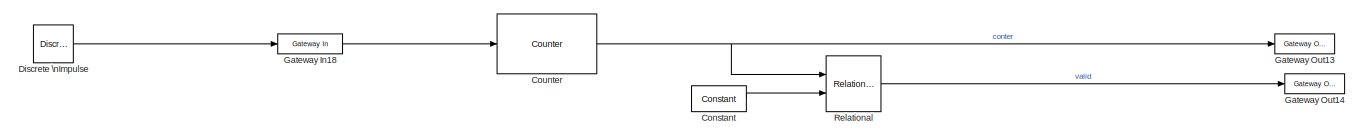
[diagram: root canvas - part 1/5, top center region]
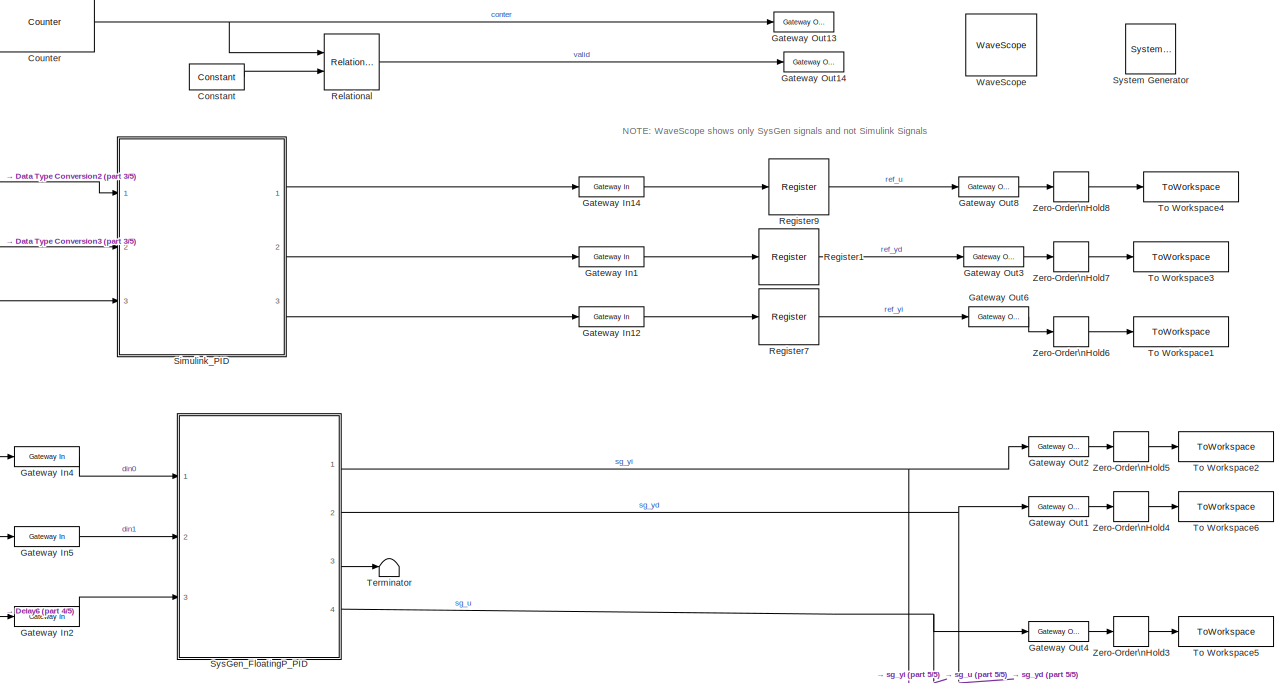
[diagram: root canvas - part 2/5, top center region]
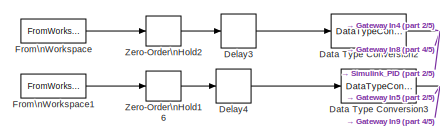
[diagram: root canvas - part 3/5, top left region]
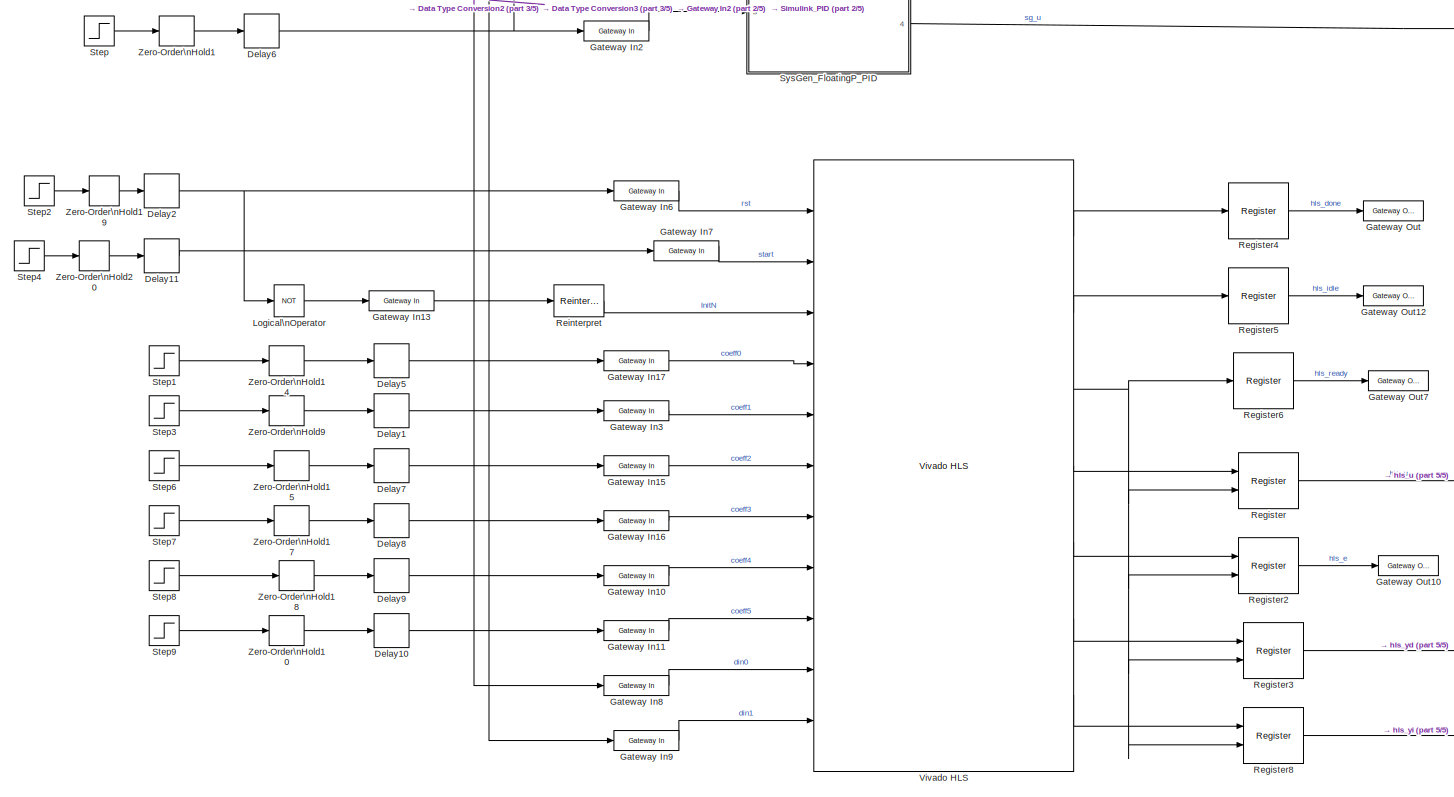
[diagram: root canvas - part 4/5, bottom center region]
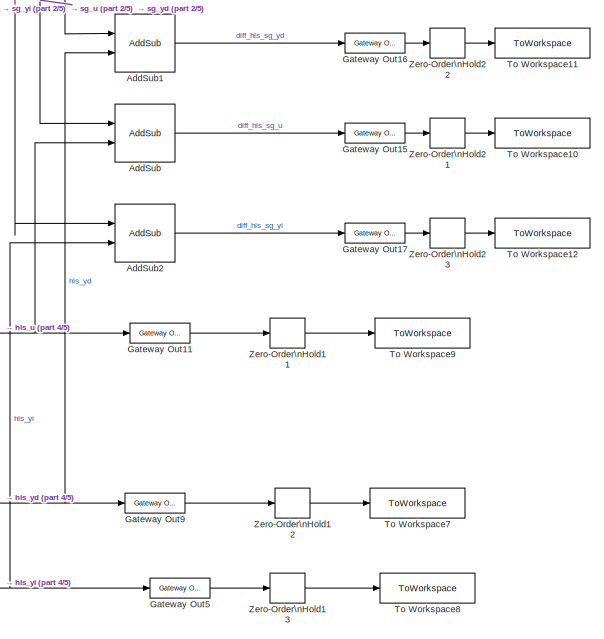
[diagram: root canvas - part 5/5, bottom right region]
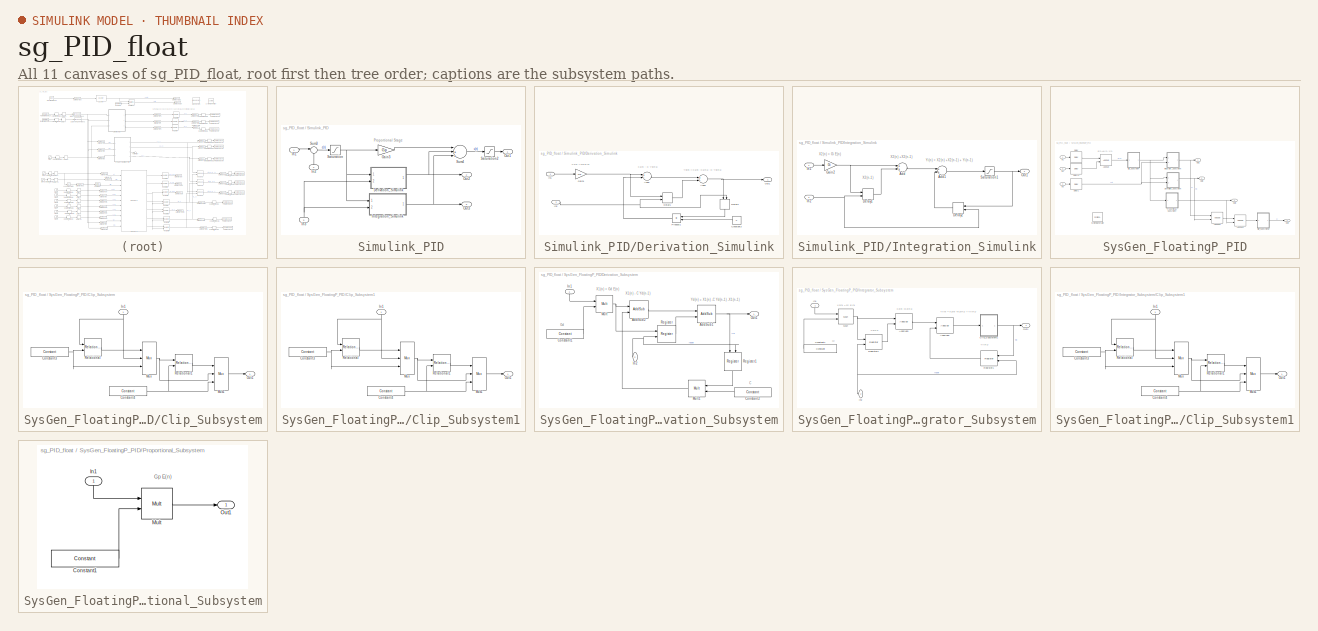
[diagram: thumbnail index - all 11 canvases of the model, root first then tree order]
MODEL sg_PID_float
KIND model
CONFIG PreLoadFcn = sg_PID_float_PreLoadFcn
CONFIG StopFcn = sg_PID_float_StopFcn
BLOCK [Reference]  System Generator  REF=xbsIndex_r4/ System Generator
  AttributesFormatString = System\\nGenerator
  Impl_file = ISE Defaults
  Ports = []
  SID = 2
  SourceBlock = xbsIndex_r4/ System Generator
  SourceType = Xilinx System Generator Block
  Synth_file = XST Defaults
  Tag = genX
  UserData = DataTag0
  UserDataPersistent = on
  block_type = sysgen
  clock_wrapper = Clock Enables
  core_generation = According to Block Masks
  dbl_ovrd = According to Block Masks
  dcm_input_clock_period = 10
  deprecated_control = off
  directory = ./netlist_top_PID
  eval_field = 0
  has_advanced_control = 0
  incr_netlist = off
  infoedit = System Generator
  package = clg400
  part = xc7z020
  proj_type = Project Navigator
  run_coregen = off
  sg_icon_stat = 50,50,0,0,token,white,0,58c5b5770fe5f7c311f53dbc6e73f0f6,right,,[ ],[ ]
  sg_mask_display = fprintf('','COMMENT: begin icon graphics');\npatch([0 50 50 0 0 ],[0 0 50 50 0 ],[1 1 1 ]);\npatch([1.6375 16.81 27.31 37.81 48.31 27.31 12.1375 1.6375 ],[36.655 36.655 47.155 36.655 47.155 47.155 47.155 36.655 ],[0.933333 0.203922 0.141176 ]);\npatch([12.1375 27.31 16.81 1.6375 12.1375 ],[26.155 26.155 36.655 36.655 26.155 ],[0.698039 0.0313725 0.219608 ]);\npatch([1.6375 16.81 27.31 12.1375 1.63...<+335ch>
  sggui_pos = 326,241,464,470
  simulink_period = 1
  speed = -1
  synthesis_tool = XST
  sysclk_period = 10
  testbench = off
  trim_vbits = Everywhere in SubSystem
  xilinxfamily = zynq
BLOCK [Reference] AddSub  REF=xbsIndex_r4/AddSub
  Ports = [2, 1]
  SID = 509
  SourceBlock = xbsIndex_r4/AddSub
  SourceType = Xilinx Adder/Subtracter Block
  arith_type = Unsigned
  bin_pt = 14
  block_type = addsub
  dbl_ovrd = off
  en = off
  has_advanced_control = 0
  hw_selection = Fabric
  latency = 0
  mode = Subtraction
  n_bits = 16
  overflow = Wrap
  pipelined = off
  precision = Full
  quantization = Truncate
  sg_icon_stat = 60,58,2,1,white,blue,0,32e1f85f,right,,[ ],[ ]
  sg_mask_display = fprintf('','COMMENT: begin icon graphics');\npatch([0 60 60 0 0 ],[0 0 58 58 0 ],[0.77 0.82 0.91 ]);\nplot([0 60 60 0 0 ],[0 0 58 58 0 ]);\npatch([12.2 23.76 31.76 39.76 47.76 31.76 20.2 12.2 ],[37.88 37.88 45.88 37.88 45.88 45.88 45.88 37.88 ],[1 1 1 ]);\npatch([20.2 31.76 23.76 12.2 20.2 ],[29.88 29.88 37.88 37.88 29.88 ],[0.931 0.946 0.973 ]);\npatch([12.2 23.76 31.76 20.2 12.2 ],[21.88 21.88 2...<+424ch>  <repeated x10 — deduplicated; at blocks: AddSub, AddSub1, AddSub2, AddSub3>
  sggui_pos = -1,-1,-1,-1
  use_behavioral_HDL = off
  use_carryin = off
  use_carryout = off
  xl_area = [0,0,0,0,0,0,0]
  xl_use_area = off
BLOCK [Reference] AddSub1  REF=xbsIndex_r4/AddSub
  Ports = [2, 1]
  SID = 513
  SourceBlock = xbsIndex_r4/AddSub
  SourceType = Xilinx Adder/Subtracter Block
  arith_type = Unsigned
  bin_pt = 14
  block_type = addsub
  dbl_ovrd = off
  en = off
  has_advanced_control = 0
  hw_selection = Fabric
  latency = 0
  mode = Subtraction
  n_bits = 16
  overflow = Wrap
  pipelined = off
  precision = Full
  quantization = Truncate
  sg_icon_stat = 60,58,2,1,white,blue,0,32e1f85f,right,,[ ],[ ]
  sggui_pos = -1,-1,-1,-1
  use_behavioral_HDL = off
  use_carryin = off
  use_carryout = off
  xl_area = [0,0,0,0,0,0,0]
  xl_use_area = off
BLOCK [Reference] AddSub2  REF=xbsIndex_r4/AddSub
  Ports = [2, 1]
  SID = 517
  SourceBlock = xbsIndex_r4/AddSub
  SourceType = Xilinx Adder/Subtracter Block
  arith_type = Unsigned
  bin_pt = 14
  block_type = addsub
  dbl_ovrd = off
  en = off
  has_advanced_control = 0
  hw_selection = Fabric
  latency = 0
  mode = Subtraction
  n_bits = 16
  overflow = Wrap
  pipelined = off
  precision = Full
  quantization = Truncate
  sg_icon_stat = 60,58,2,1,white,blue,0,32e1f85f,right,,[ ],[ ]
  sggui_pos = -1,-1,-1,-1
  use_behavioral_HDL = off
  use_carryin = off
  use_carryout = off
  xl_area = [0,0,0,0,0,0,0]
  xl_use_area = off
BLOCK [Reference] Constant  REF=xbsIndex_r4/Constant
  Ports = [0, 1]
  SID = 505
  SourceBlock = xbsIndex_r4/Constant
  SourceType = Xilinx Constant Block Block
  arith_type = Unsigned
  bin_pt = 0
  block_type = constant
  carry = CIN
  const = II-1
  dbl_ovrd = off
  dsp48_infoedit = The use of this block for DSP48 instructions is deprecated.  Please use the Opmode block.
  equ = P=C
  exp_width = 8
  explicit_period = on
  frac_width = 24
  gui_display_data_type = Fixed-point
  has_advanced_control = 0
  inp1 = P
  inp2 = PCIN>>17
  n_bits = 10
  opr = +
  opselect = C
  period = 1
  preci_type = Single
  sg_icon_stat = 55,26,0,1,white,blue,0,cd6148db,right,,[ ],[ ]
  sg_mask_display = fprintf('','COMMENT: begin icon graphics');\npatch([0 55 55 0 0 ],[0 0 26 26 0 ],[0.77 0.82 0.91 ]);\nplot([0 55 55 0 0 ],[0 0 26 26 0 ]);\npatch([20.325 24.66 27.66 30.66 33.66 27.66 23.325 20.325 ],[16.33 16.33 19.33 16.33 19.33 19.33 19.33 16.33 ],[1 1 1 ]);\npatch([23.325 27.66 24.66 20.325 23.325 ],[13.33 13.33 16.33 16.33 13.33 ],[0.931 0.946 0.973 ]);\npatch([20.325 24.66 27.66 23.325 20.32...<+334ch>
  sggui_pos = -1,-1,-1,-1
BLOCK [Reference] Counter  REF=xbsIndex_r4/Counter
  Ports = [1, 1]
  SID = 499
  SourceBlock = xbsIndex_r4/Counter
  SourceType = Xilinx Counter Block
  arith_type = Unsigned
  bin_pt = 0
  block_type = counter
  cnt_by_val = 1
  cnt_to = II-1
  cnt_type = Count Limited
  dbl_ovrd = off
  en = off
  explicit_period = on
  has_advanced_control = 0
  implementation = Fabric
  infoedit = Hardware notes: Free running counters are the least expensive in hardware.  A count limited counter is implemented by combining a counter with a comparator.
  load_pin = off
  n_bits = 10
  operation = Up
  period = 1
  rst = on
  sg_icon_stat = 100,60,1,1,white,blue,0,53dad701,right,,[ ],[ ]
  sg_mask_display = fprintf('','COMMENT: begin icon graphics');\npatch([0 100 100 0 0 ],[0 0 60 60 0 ],[0.77 0.82 0.91 ]);\nplot([0 100 100 0 0 ],[0 0 60 60 0 ]);\npatch([32.2 43.76 51.76 59.76 67.76 51.76 40.2 32.2 ],[38.88 38.88 46.88 38.88 46.88 46.88 46.88 38.88 ],[1 1 1 ]);\npatch([40.2 51.76 43.76 32.2 40.2 ],[30.88 30.88 38.88 38.88 30.88 ],[0.931 0.946 0.973 ]);\npatch([32.2 43.76 51.76 40.2 32.2 ],[22.88 22....<+397ch>
  sggui_pos = -1,-1,-1,-1
  start_count = 0
  use_behavioral_HDL = off
  xl_area = [0,0,0,0,0,0,0]
  xl_use_area = off
BLOCK [DataTypeConversion] Data Type Conversion2
  OutDataTypeStr = single
  RndMeth = Floor
  SID = 407
  SaturateOnIntegerOverflow = off
BLOCK [DataTypeConversion] Data Type Conversion3
  OutDataTypeStr = single
  RndMeth = Floor
  SID = 408
  SaturateOnIntegerOverflow = off
BLOCK [Delay] Delay1
  DelayLength = 11
  ExternalReset = None
  InputPortMap = u0
  Ports = [1, 1]
  SID = 430
BLOCK [Delay] Delay10
  DelayLength = 11
  ExternalReset = None
  InputPortMap = u0
  Ports = [1, 1]
  SID = 428
BLOCK [Delay] Delay11
  DelayLength = 11
  ExternalReset = None
  InputPortMap = u0
  Ports = [1, 1]
  SID = 481
BLOCK [Delay] Delay2
  DelayLength = 1
  ExternalReset = None
  InputPortMap = u0
  Ports = [1, 1]
  SID = 480
BLOCK [Delay] Delay3
  DelayLength = 11
  ExternalReset = None
  InputPortMap = u0
  Ports = [1, 1]
  SID = 409
BLOCK [Delay] Delay4
  DelayLength = 11
  ExternalReset = None
  InputPortMap = u0
  Ports = [1, 1]
  SID = 410
BLOCK [Delay] Delay5
  DelayLength = 11
  ExternalReset = None
  InputPortMap = u0
  Ports = [1, 1]
  SID = 429
BLOCK [Delay] Delay6
  DelayLength = 10
  ExternalReset = None
  InputPortMap = u0
  Ports = [1, 1]
  SID = 401
BLOCK [Delay] Delay7
  DelayLength = 11
  ExternalReset = None
  InputPortMap = u0
  Ports = [1, 1]
  SID = 431
BLOCK [Delay] Delay8
  DelayLength = 11
  ExternalReset = None
  InputPortMap = u0
  Ports = [1, 1]
  SID = 432
BLOCK [Delay] Delay9
  DelayLength = 11
  ExternalReset = None
  InputPortMap = u0
  Ports = [1, 1]
  SID = 433
BLOCK [Reference] Discrete \nImpulse  REF=dspsrcs4/Discrete \nImpulse
  Delay = 0
  FrameSample = 1
  LastOutDataTypeStr = double
  OutDataTypeStr = double
  Ports = [0, 1]
  SID = 501
  SampleTime = 1
  SourceBlock = dspsrcs4/Discrete \nImpulse
  SourceType = Discrete Impulse
  additionalParams = off
  allowOverrides = on
  dataType = double
  fracBitsMode = Best precision
  isSigned = on
  numFracBits = 15
  udDataType = sfix(16)
  wordLen = 16
BLOCK [FromWorkspace] From\nWorkspace
  Interpolate = off
  OutputAfterFinalValue = Holding final value
  SID = 411
  SampleTime = II
  VariableName = simin_w1
  ZeroCross = on
BLOCK [FromWorkspace] From\nWorkspace1
  Interpolate = off
  OutputAfterFinalValue = Holding final value
  SID = 412
  SampleTime = II
  VariableName = simin_w2
  ZeroCross = on
BLOCK [Reference] Gateway In1  REF=xbsIndex_r4/Gateway In
  ADCChannel = '1'
  LOCs = {}
  Ports = [1, 1]
  SID = 306
  SourceBlock = xbsIndex_r4/Gateway In
  SourceType = Xilinx Gateway In Block
  UseAsADC = off
  arith_type = Floating-point
  bin_pt = 25-10
  block_type = gatewayin
  dbl_ovrd = off
  exp_width = 8
  frac_width = 24
  gui_display_data_type = Floating-point
  has_advanced_control = 0
  hdl_port = on
  infoedit = Gateway in block.  Converts inputs of type Simulink integer, single, double and fixed-point to  Xilinx fixed-point or floating-point data type.<br><br>Hardware notes:  In hardware these blocks become top level input ports.  <repeated x18 — deduplicated; at blocks: Gateway In1, Gateway In10, Gateway In11, Gateway In12, Gateway In13, Gateway In14, Gateway In15, Gateway In16, Gateway In17, Gateway In18, Gateway In2, Gateway In3, Gateway In4, Gateway In5, Gateway In6, Gateway In7, +2 more>
  inherit_from_input = off
  locs_specified = off
  n_bits = 25
  overflow = Saturate
  period = II
  preci_type = Single
  quantization = Round  (unbiased: +/- Inf)
  sg_icon_stat = 65,20,1,1,white,yellow,1,00d3666e,right,,[ ],[ ]
  sg_mask_display = fprintf('','COMMENT: begin icon graphics');\npatch([0 65 65 0 0 ],[0 0 20 20 0 ],[0.95 0.93 0.65 ]);\nplot([0 65 65 0 0 ],[0 0 20 20 0 ]);\npatch([27.55 30.44 32.44 34.44 36.44 32.44 29.55 27.55 ],[12.22 12.22 14.22 12.22 14.22 14.22 14.22 12.22 ],[1 1 1 ]);\npatch([29.55 32.44 30.44 27.55 29.55 ],[10.22 10.22 12.22 12.22 10.22 ],[0.985 0.979 0.895 ]);\npatch([27.55 30.44 32.44 29.55 27.55 ],[8.22...<+396ch>  <repeated x18 — deduplicated; at blocks: Gateway In1, Gateway In10, Gateway In11, Gateway In12, Gateway In13, Gateway In14, Gateway In15, Gateway In16, Gateway In17, Gateway In18, Gateway In2, Gateway In3, Gateway In4, Gateway In5, Gateway In6, Gateway In7, +2 more>
  sggui_pos = -1,-1,-1,-1
  timing_constraint = None
  xl_area = [0,0,0,0,0,0,0]
  xl_use_area = off
BLOCK [Reference] Gateway In10  REF=xbsIndex_r4/Gateway In
  ADCChannel = '1'
  LOCs = {}
  Ports = [1, 1]
  SID = 434
  SourceBlock = xbsIndex_r4/Gateway In
  SourceType = Xilinx Gateway In Block
  UseAsADC = off
  arith_type = Floating-point
  bin_pt = 25-10
  block_type = gatewayin
  dbl_ovrd = off
  exp_width = 8
  frac_width = 24
  gui_display_data_type = Floating-point
  has_advanced_control = 0
  hdl_port = on
  inherit_from_input = off
  locs_specified = off
  n_bits = 25
  overflow = Saturate
  period = II
  preci_type = Single
  quantization = Round  (unbiased: +/- Inf)
  sg_icon_stat = 65,20,1,1,white,yellow,1,00d3666e,right,,[ ],[ ]
  sggui_pos = -1,-1,-1,-1
  timing_constraint = None
  xl_area = [0,0,0,0,0,0,0]
  xl_use_area = off
BLOCK [Reference] Gateway In11  REF=xbsIndex_r4/Gateway In
  ADCChannel = '1'
  LOCs = {}
  Ports = [1, 1]
  SID = 435
  SourceBlock = xbsIndex_r4/Gateway In
  SourceType = Xilinx Gateway In Block
  UseAsADC = off
  arith_type = Floating-point
  bin_pt = 25-10
  block_type = gatewayin
  dbl_ovrd = off
  exp_width = 8
  frac_width = 24
  gui_display_data_type = Floating-point
  has_advanced_control = 0
  hdl_port = on
  inherit_from_input = off
  locs_specified = off
  n_bits = 25
  overflow = Saturate
  period = II
  preci_type = Single
  quantization = Round  (unbiased: +/- Inf)
  sg_icon_stat = 65,20,1,1,white,yellow,1,00d3666e,right,,[ ],[ ]
  sggui_pos = -1,-1,-1,-1
  timing_constraint = None
  xl_area = [0,0,0,0,0,0,0]
  xl_use_area = off
BLOCK [Reference] Gateway In12  REF=xbsIndex_r4/Gateway In
  ADCChannel = '1'
  LOCs = {}
  Ports = [1, 1]
  SID = 157
  SourceBlock = xbsIndex_r4/Gateway In
  SourceType = Xilinx Gateway In Block
  UseAsADC = off
  arith_type = Floating-point
  bin_pt = 25-10
  block_type = gatewayin
  dbl_ovrd = off
  exp_width = 8
  frac_width = 24
  gui_display_data_type = Floating-point
  has_advanced_control = 0
  hdl_port = on
  inherit_from_input = off
  locs_specified = off
  n_bits = 25
  overflow = Saturate
  period = II
  preci_type = Single
  quantization = Round  (unbiased: +/- Inf)
  sg_icon_stat = 65,20,1,1,white,yellow,1,00d3666e,right,,[ ],[ ]
  sggui_pos = -1,-1,-1,-1
  timing_constraint = None
  xl_area = [0,0,0,0,0,0,0]
  xl_use_area = off
BLOCK [Reference] Gateway In13  REF=xbsIndex_r4/Gateway In
  ADCChannel = '1'
  LOCs = {}
  Ports = [1, 1]
  SID = 436
  SourceBlock = xbsIndex_r4/Gateway In
  SourceType = Xilinx Gateway In Block
  UseAsADC = off
  arith_type = Boolean
  bin_pt = 25-10
  block_type = gatewayin
  dbl_ovrd = off
  exp_width = 8
  frac_width = 24
  gui_display_data_type = Boolean
  has_advanced_control = 0
  hdl_port = on
  inherit_from_input = off
  locs_specified = off
  n_bits = 25
  overflow = Saturate
  period = II
  preci_type = Single
  quantization = Round  (unbiased: +/- Inf)
  sg_icon_stat = 65,20,1,1,white,yellow,1,00d3666e,right,,[ ],[ ]
  sggui_pos = -1,-1,-1,-1
  timing_constraint = None
  xl_area = [0,0,0,0,0,0,0]
  xl_use_area = off
BLOCK [Reference] Gateway In14  REF=xbsIndex_r4/Gateway In
  ADCChannel = '1'
  LOCs = {}
  Ports = [1, 1]
  SID = 167
  SourceBlock = xbsIndex_r4/Gateway In
  SourceType = Xilinx Gateway In Block
  UseAsADC = off
  arith_type = Floating-point
  bin_pt = 25-10
  block_type = gatewayin
  dbl_ovrd = off
  exp_width = 8
  frac_width = 24
  gui_display_data_type = Floating-point
  has_advanced_control = 0
  hdl_port = on
  inherit_from_input = off
  locs_specified = off
  n_bits = 25
  overflow = Saturate
  period = II
  preci_type = Single
  quantization = Round  (unbiased: +/- Inf)
  sg_icon_stat = 65,20,1,1,white,yellow,1,00d3666e,right,,[ ],[ ]
  sggui_pos = -1,-1,-1,-1
  timing_constraint = None
  xl_area = [0,0,0,0,0,0,0]
  xl_use_area = off
BLOCK [Reference] Gateway In15  REF=xbsIndex_r4/Gateway In
  ADCChannel = '1'
  LOCs = {}
  Ports = [1, 1]
  SID = 437
  SourceBlock = xbsIndex_r4/Gateway In
  SourceType = Xilinx Gateway In Block
  UseAsADC = off
  arith_type = Floating-point
  bin_pt = 25-10
  block_type = gatewayin
  dbl_ovrd = off
  exp_width = 8
  frac_width = 24
  gui_display_data_type = Floating-point
  has_advanced_control = 0
  hdl_port = on
  inherit_from_input = off
  locs_specified = off
  n_bits = 25
  overflow = Saturate
  period = II
  preci_type = Single
  quantization = Round  (unbiased: +/- Inf)
  sg_icon_stat = 65,20,1,1,white,yellow,1,00d3666e,right,,[ ],[ ]
  sggui_pos = -1,-1,-1,-1
  timing_constraint = None
  xl_area = [0,0,0,0,0,0,0]
  xl_use_area = off
BLOCK [Reference] Gateway In16  REF=xbsIndex_r4/Gateway In
  ADCChannel = '1'
  LOCs = {}
  Ports = [1, 1]
  SID = 438
  SourceBlock = xbsIndex_r4/Gateway In
  SourceType = Xilinx Gateway In Block
  UseAsADC = off
  arith_type = Floating-point
  bin_pt = 25-10
  block_type = gatewayin
  dbl_ovrd = off
  exp_width = 8
  frac_width = 24
  gui_display_data_type = Floating-point
  has_advanced_control = 0
  hdl_port = on
  inherit_from_input = off
  locs_specified = off
  n_bits = 25
  overflow = Saturate
  period = II
  preci_type = Single
  quantization = Round  (unbiased: +/- Inf)
  sg_icon_stat = 65,20,1,1,white,yellow,1,00d3666e,right,,[ ],[ ]
  sggui_pos = -1,-1,-1,-1
  timing_constraint = None
  xl_area = [0,0,0,0,0,0,0]
  xl_use_area = off
BLOCK [Reference] Gateway In17  REF=xbsIndex_r4/Gateway In
  ADCChannel = '1'
  LOCs = {}
  Ports = [1, 1]
  SID = 444
  SourceBlock = xbsIndex_r4/Gateway In
  SourceType = Xilinx Gateway In Block
  UseAsADC = off
  arith_type = Floating-point
  bin_pt = 25-10
  block_type = gatewayin
  dbl_ovrd = off
  exp_width = 8
  frac_width = 24
  gui_display_data_type = Floating-point
  has_advanced_control = 0
  hdl_port = on
  inherit_from_input = off
  locs_specified = off
  n_bits = 25
  overflow = Saturate
  period = II
  preci_type = Single
  quantization = Round  (unbiased: +/- Inf)
  sg_icon_stat = 65,20,1,1,white,yellow,1,00d3666e,right,,[ ],[ ]
  sggui_pos = -1,-1,-1,-1
  timing_constraint = None
  xl_area = [0,0,0,0,0,0,0]
  xl_use_area = off
BLOCK [Reference] Gateway In18  REF=xbsIndex_r4/Gateway In
  ADCChannel = '1'
  LOCs = {}
  Ports = [1, 1]
  SID = 500
  SourceBlock = xbsIndex_r4/Gateway In
  SourceType = Xilinx Gateway In Block
  UseAsADC = off
  arith_type = Boolean
  bin_pt = 25-10
  block_type = gatewayin
  dbl_ovrd = off
  exp_width = 8
  frac_width = 24
  gui_display_data_type = Boolean
  has_advanced_control = 0
  hdl_port = on
  inherit_from_input = off
  locs_specified = off
  n_bits = 25
  overflow = Saturate
  period = 1
  preci_type = Single
  quantization = Round  (unbiased: +/- Inf)
  sg_icon_stat = 65,20,1,1,white,yellow,1,00d3666e,right,,[ ],[ ]
  sggui_pos = -1,-1,-1,-1
  timing_constraint = None
  xl_area = [0,0,0,0,0,0,0]
  xl_use_area = off
BLOCK [Reference] Gateway In2  REF=xbsIndex_r4/Gateway In
  ADCChannel = '1'
  LOCs = {}
  Ports = [1, 1]
  SID = 400
  SourceBlock = xbsIndex_r4/Gateway In
  SourceType = Xilinx Gateway In Block
  UseAsADC = off
  arith_type = Boolean
  bin_pt = 25-10
  block_type = gatewayin
  dbl_ovrd = off
  exp_width = 8
  frac_width = 24
  gui_display_data_type = Boolean
  has_advanced_control = 0
  hdl_port = on
  inherit_from_input = off
  locs_specified = off
  n_bits = 25
  overflow = Saturate
  period = II
  preci_type = Single
  quantization = Round  (unbiased: +/- Inf)
  sg_icon_stat = 65,20,1,1,white,yellow,1,00d3666e,right,,[ ],[ ]
  sggui_pos = -1,-1,-1,-1
  timing_constraint = None
  xl_area = [0,0,0,0,0,0,0]
  xl_use_area = off
BLOCK [Reference] Gateway In3  REF=xbsIndex_r4/Gateway In
  ADCChannel = '1'
  LOCs = {}
  Ports = [1, 1]
  SID = 439
  SourceBlock = xbsIndex_r4/Gateway In
  SourceType = Xilinx Gateway In Block
  UseAsADC = off
  arith_type = Floating-point
  bin_pt = 25-10
  block_type = gatewayin
  dbl_ovrd = off
  exp_width = 8
  frac_width = 24
  gui_display_data_type = Floating-point
  has_advanced_control = 0
  hdl_port = on
  inherit_from_input = off
  locs_specified = off
  n_bits = 25
  overflow = Saturate
  period = II
  preci_type = Single
  quantization = Round  (unbiased: +/- Inf)
  sg_icon_stat = 65,20,1,1,white,yellow,1,00d3666e,right,,[ ],[ ]
  sggui_pos = -1,-1,-1,-1
  timing_constraint = None
  xl_area = [0,0,0,0,0,0,0]
  xl_use_area = off
BLOCK [Reference] Gateway In4  REF=xbsIndex_r4/Gateway In
  ADCChannel = '1'
  LOCs = {}
  Ports = [1, 1]
  SID = 105
  SourceBlock = xbsIndex_r4/Gateway In
  SourceType = Xilinx Gateway In Block
  UseAsADC = off
  arith_type = Floating-point
  bin_pt = 25-10
  block_type = gatewayin
  dbl_ovrd = off
  exp_width = 8
  frac_width = 24
  gui_display_data_type = Floating-point
  has_advanced_control = 0
  hdl_port = on
  inherit_from_input = off
  locs_specified = off
  n_bits = 25
  overflow = Saturate
  period = II
  preci_type = Single
  quantization = Round  (unbiased: +/- Inf)
  sg_icon_stat = 65,20,1,1,white,yellow,1,00d3666e,right,,[ ],[ ]
  sggui_pos = 442,3,348,604
  timing_constraint = None
  xl_area = [0,0,0,0,0,0,0]
  xl_use_area = off
BLOCK [Reference] Gateway In5  REF=xbsIndex_r4/Gateway In
  ADCChannel = '1'
  LOCs = {}
  Ports = [1, 1]
  SID = 106
  SourceBlock = xbsIndex_r4/Gateway In
  SourceType = Xilinx Gateway In Block
  UseAsADC = off
  arith_type = Floating-point
  bin_pt = 25-10
  block_type = gatewayin
  dbl_ovrd = off
  exp_width = 8
  frac_width = 24
  gui_display_data_type = Floating-point
  has_advanced_control = 0
  hdl_port = on
  inherit_from_input = off
  locs_specified = off
  n_bits = 25
  overflow = Saturate
  period = II
  preci_type = Single
  quantization = Round  (unbiased: +/- Inf)
  sg_icon_stat = 65,20,1,1,white,yellow,1,00d3666e,right,,[ ],[ ]
  sggui_pos = -1,-1,-1,-1
  timing_constraint = None
  xl_area = [0,0,0,0,0,0,0]
  xl_use_area = off
BLOCK [Reference] Gateway In6  REF=xbsIndex_r4/Gateway In
  ADCChannel = '1'
  LOCs = {}
  Ports = [1, 1]
  SID = 440
  SourceBlock = xbsIndex_r4/Gateway In
  SourceType = Xilinx Gateway In Block
  UseAsADC = off
  arith_type = Boolean
  bin_pt = 25-10
  block_type = gatewayin
  dbl_ovrd = off
  exp_width = 8
  frac_width = 24
  gui_display_data_type = Boolean
  has_advanced_control = 0
  hdl_port = on
  inherit_from_input = off
  locs_specified = off
  n_bits = 25
  overflow = Saturate
  period = II
  preci_type = Single
  quantization = Round  (unbiased: +/- Inf)
  sg_icon_stat = 65,20,1,1,white,yellow,1,00d3666e,right,,[ ],[ ]
  sggui_pos = -1,-1,-1,-1
  timing_constraint = None
  xl_area = [0,0,0,0,0,0,0]
  xl_use_area = off
BLOCK [Reference] Gateway In7  REF=xbsIndex_r4/Gateway In
  ADCChannel = '1'
  LOCs = {}
  Ports = [1, 1]
  SID = 441
  SourceBlock = xbsIndex_r4/Gateway In
  SourceType = Xilinx Gateway In Block
  UseAsADC = off
  arith_type = Boolean
  bin_pt = 25-10
  block_type = gatewayin
  dbl_ovrd = off
  exp_width = 8
  frac_width = 24
  gui_display_data_type = Boolean
  has_advanced_control = 0
  hdl_port = on
  inherit_from_input = off
  locs_specified = off
  n_bits = 25
  overflow = Saturate
  period = II
  preci_type = Single
  quantization = Round  (unbiased: +/- Inf)
  sg_icon_stat = 65,20,1,1,white,yellow,1,00d3666e,right,,[ ],[ ]
  sggui_pos = -1,-1,-1,-1
  timing_constraint = None
  xl_area = [0,0,0,0,0,0,0]
  xl_use_area = off
BLOCK [Reference] Gateway In8  REF=xbsIndex_r4/Gateway In
  ADCChannel = '1'
  LOCs = {}
  Ports = [1, 1]
  SID = 442
  SourceBlock = xbsIndex_r4/Gateway In
  SourceType = Xilinx Gateway In Block
  UseAsADC = off
  arith_type = Floating-point
  bin_pt = 25-10
  block_type = gatewayin
  dbl_ovrd = off
  exp_width = 8
  frac_width = 24
  gui_display_data_type = Floating-point
  has_advanced_control = 0
  hdl_port = on
  inherit_from_input = off
  locs_specified = off
  n_bits = 25
  overflow = Saturate
  period = II
  preci_type = Single
  quantization = Round  (unbiased: +/- Inf)
  sg_icon_stat = 65,20,1,1,white,yellow,1,00d3666e,right,,[ ],[ ]
  sggui_pos = -1,-1,-1,-1
  timing_constraint = None
  xl_area = [0,0,0,0,0,0,0]
  xl_use_area = off
BLOCK [Reference] Gateway In9  REF=xbsIndex_r4/Gateway In
  ADCChannel = '1'
  LOCs = {}
  Ports = [1, 1]
  SID = 443
  SourceBlock = xbsIndex_r4/Gateway In
  SourceType = Xilinx Gateway In Block
  UseAsADC = off
  arith_type = Floating-point
  bin_pt = 25-10
  block_type = gatewayin
  dbl_ovrd = off
  exp_width = 8
  frac_width = 24
  gui_display_data_type = Floating-point
  has_advanced_control = 0
  hdl_port = on
  inherit_from_input = off
  locs_specified = off
  n_bits = 25
  overflow = Saturate
  period = II
  preci_type = Single
  quantization = Round  (unbiased: +/- Inf)
  sg_icon_stat = 65,20,1,1,white,yellow,1,00d3666e,right,,[ ],[ ]
  sggui_pos = 999,154,348,604
  timing_constraint = None
  xl_area = [0,0,0,0,0,0,0]
  xl_use_area = off
BLOCK [Reference] Gateway Out  REF=xbsIndex_r4/Gateway Out
  DACChannel = '1'
  LOCs = {}
  Ports = [1, 1]
  SID = 445
  SourceBlock = xbsIndex_r4/Gateway Out
  SourceType = Xilinx Gateway Out Block
  UseAsDAC = off
  block_type = gatewayout
  has_advanced_control = 0
  hdl_port = off
  infoedit = Gateway out block.  Converts Xilinx fixed-point or floating-point type inputs into ouputs of type Simulink integer, single, double, or fixed-point.<br><br>Hardware notes:  In hardware these blocks become top level output ports or are discarded, depending on how they are configured.  <repeated x18 — deduplicated; at blocks: Gateway Out, Gateway Out1, Gateway Out10, Gateway Out11, Gateway Out12, Gateway Out13, Gateway Out14, Gateway Out15, Gateway Out16, Gateway Out17, Gateway Out2, Gateway Out3, Gateway Out4, Gateway Out5, Gateway Out6, Gateway Out7, +2 more>
  inherit_from_input = off
  locs_specified = off
  sg_icon_stat = 60,20,1,1,white,grey,1,632ec840,right,,[ ],[ ]
  sg_mask_display = fprintf('','COMMENT: begin icon graphics');\npatch([0 60 60 0 0 ],[0 0 20 20 0 ],[0.88 0.88 0.88 ]);\nplot([0 60 60 0 0 ],[0 0 20 20 0 ]);\npatch([25.55 28.44 30.44 32.44 34.44 30.44 27.55 25.55 ],[12.22 12.22 14.22 12.22 14.22 14.22 14.22 12.22 ],[1 1 1 ]);\npatch([27.55 30.44 28.44 25.55 27.55 ],[10.22 10.22 12.22 12.22 10.22 ],[0.964 0.964 0.964 ]);\npatch([25.55 28.44 30.44 27.55 25.55 ],[8.22...<+393ch>  <repeated x16 — deduplicated; at blocks: Gateway Out, Gateway Out1, Gateway Out10, Gateway Out12, Gateway Out13, Gateway Out14, Gateway Out15, Gateway Out16, Gateway Out17, Gateway Out2, Gateway Out3, Gateway Out4, Gateway Out5, Gateway Out6, Gateway Out8, Gateway Out9>
  sggui_pos = -1,-1,-1,-1
  timing_constraint = None
  xl_area = [0,0,0,0,0,0,0]
  xl_use_area = off
BLOCK [Reference] Gateway Out1  REF=xbsIndex_r4/Gateway Out
  DACChannel = '1'
  LOCs = {}
  Ports = [1, 1]
  SID = 190
  SourceBlock = xbsIndex_r4/Gateway Out
  SourceType = Xilinx Gateway Out Block
  UseAsDAC = off
  block_type = gatewayout
  has_advanced_control = 0
  hdl_port = off
  inherit_from_input = off
  locs_specified = off
  sg_icon_stat = 60,20,1,1,white,grey,1,632ec840,right,,[ ],[ ]
  sggui_pos = -1,-1,-1,-1
  timing_constraint = None
  xl_area = [0,0,0,0,0,0,0]
  xl_use_area = off
BLOCK [Reference] Gateway Out10  REF=xbsIndex_r4/Gateway Out
  DACChannel = '1'
  LOCs = {}
  Ports = [1, 1]
  SID = 446
  SourceBlock = xbsIndex_r4/Gateway Out
  SourceType = Xilinx Gateway Out Block
  UseAsDAC = off
  block_type = gatewayout
  has_advanced_control = 0
  hdl_port = off
  inherit_from_input = off
  locs_specified = off
  sg_icon_stat = 60,20,1,1,white,grey,1,632ec840,right,,[ ],[ ]
  sggui_pos = -1,-1,-1,-1
  timing_constraint = None
  xl_area = [0,0,0,0,0,0,0]
  xl_use_area = off
BLOCK [Reference] Gateway Out11  REF=xbsIndex_r4/Gateway Out
  DACChannel = '1'
  LOCs = {}
  Ports = [1, 1]
  SID = 447
  SourceBlock = xbsIndex_r4/Gateway Out
  SourceType = Xilinx Gateway Out Block
  UseAsDAC = off
  block_type = gatewayout
  has_advanced_control = 0
  hdl_port = on
  inherit_from_input = off
  locs_specified = off
  sg_icon_stat = 60,20,1,1,white,yellow,1,cc31b7ac,right,,[ ],[ ]
  sg_mask_display = fprintf('','COMMENT: begin icon graphics');\npatch([0 60 60 0 0 ],[0 0 20 20 0 ],[0.95 0.93 0.65 ]);\nplot([0 60 60 0 0 ],[0 0 20 20 0 ]);\npatch([25.55 28.44 30.44 32.44 34.44 30.44 27.55 25.55 ],[12.22 12.22 14.22 12.22 14.22 14.22 14.22 12.22 ],[1 1 1 ]);\npatch([27.55 30.44 28.44 25.55 27.55 ],[10.22 10.22 12.22 12.22 10.22 ],[0.985 0.979 0.895 ]);\npatch([25.55 28.44 30.44 27.55 25.55 ],[8.22...<+397ch>
  sggui_pos = -1,-1,-1,-1
  timing_constraint = None
  xl_area = [0,0,0,0,0,0,0]
  xl_use_area = off
BLOCK [Reference] Gateway Out12  REF=xbsIndex_r4/Gateway Out
  DACChannel = '1'
  LOCs = {}
  Ports = [1, 1]
  SID = 448
  SourceBlock = xbsIndex_r4/Gateway Out
  SourceType = Xilinx Gateway Out Block
  UseAsDAC = off
  block_type = gatewayout
  has_advanced_control = 0
  hdl_port = off
  inherit_from_input = off
  locs_specified = off
  sg_icon_stat = 60,20,1,1,white,grey,1,632ec840,right,,[ ],[ ]
  sggui_pos = -1,-1,-1,-1
  timing_constraint = None
  xl_area = [0,0,0,0,0,0,0]
  xl_use_area = off
BLOCK [Reference] Gateway Out13  REF=xbsIndex_r4/Gateway Out
  DACChannel = '1'
  LOCs = {}
  Ports = [1, 1]
  SID = 503
  SourceBlock = xbsIndex_r4/Gateway Out
  SourceType = Xilinx Gateway Out Block
  UseAsDAC = off
  block_type = gatewayout
  has_advanced_control = 0
  hdl_port = off
  inherit_from_input = off
  locs_specified = off
  sg_icon_stat = 60,20,1,1,white,grey,1,632ec840,right,,[ ],[ ]
  sggui_pos = -1,-1,-1,-1
  timing_constraint = None
  xl_area = [0,0,0,0,0,0,0]
  xl_use_area = off
BLOCK [Reference] Gateway Out14  REF=xbsIndex_r4/Gateway Out
  DACChannel = '1'
  LOCs = {}
  Ports = [1, 1]
  SID = 506
  SourceBlock = xbsIndex_r4/Gateway Out
  SourceType = Xilinx Gateway Out Block
  UseAsDAC = off
  block_type = gatewayout
  has_advanced_control = 0
  hdl_port = off
  inherit_from_input = off
  locs_specified = off
  sg_icon_stat = 60,20,1,1,white,grey,1,632ec840,right,,[ ],[ ]
  sggui_pos = -1,-1,-1,-1
  timing_constraint = None
  xl_area = [0,0,0,0,0,0,0]
  xl_use_area = off
BLOCK [Reference] Gateway Out15  REF=xbsIndex_r4/Gateway Out
  DACChannel = '1'
  LOCs = {}
  Ports = [1, 1]
  SID = 510
  SourceBlock = xbsIndex_r4/Gateway Out
  SourceType = Xilinx Gateway Out Block
  UseAsDAC = off
  block_type = gatewayout
  has_advanced_control = 0
  hdl_port = off
  inherit_from_input = off
  locs_specified = off
  sg_icon_stat = 60,20,1,1,white,grey,1,632ec840,right,,[ ],[ ]
  sggui_pos = -1,-1,-1,-1
  timing_constraint = None
  xl_area = [0,0,0,0,0,0,0]
  xl_use_area = off
BLOCK [Reference] Gateway Out16  REF=xbsIndex_r4/Gateway Out
  DACChannel = '1'
  LOCs = {}
  Ports = [1, 1]
  SID = 514
  SourceBlock = xbsIndex_r4/Gateway Out
  SourceType = Xilinx Gateway Out Block
  UseAsDAC = off
  block_type = gatewayout
  has_advanced_control = 0
  hdl_port = off
  inherit_from_input = off
  locs_specified = off
  sg_icon_stat = 60,20,1,1,white,grey,1,632ec840,right,,[ ],[ ]
  sggui_pos = -1,-1,-1,-1
  timing_constraint = None
  xl_area = [0,0,0,0,0,0,0]
  xl_use_area = off
BLOCK [Reference] Gateway Out17  REF=xbsIndex_r4/Gateway Out
  DACChannel = '1'
  LOCs = {}
  Ports = [1, 1]
  SID = 518
  SourceBlock = xbsIndex_r4/Gateway Out
  SourceType = Xilinx Gateway Out Block
  UseAsDAC = off
  block_type = gatewayout
  has_advanced_control = 0
  hdl_port = off
  inherit_from_input = off
  locs_specified = off
  sg_icon_stat = 60,20,1,1,white,grey,1,632ec840,right,,[ ],[ ]
  sggui_pos = -1,-1,-1,-1
  timing_constraint = None
  xl_area = [0,0,0,0,0,0,0]
  xl_use_area = off
BLOCK [Reference] Gateway Out2  REF=xbsIndex_r4/Gateway Out
  DACChannel = '1'
  LOCs = {}
  Ports = [1, 1]
  SID = 230
  SourceBlock = xbsIndex_r4/Gateway Out
  SourceType = Xilinx Gateway Out Block
  UseAsDAC = off
  block_type = gatewayout
  has_advanced_control = 0
  hdl_port = off
  inherit_from_input = off
  locs_specified = off
  sg_icon_stat = 60,20,1,1,white,grey,1,632ec840,right,,[ ],[ ]
  sggui_pos = -1,-1,-1,-1
  timing_constraint = None
  xl_area = [0,0,0,0,0,0,0]
  xl_use_area = off
BLOCK [Reference] Gateway Out3  REF=xbsIndex_r4/Gateway Out
  DACChannel = '1'
  LOCs = {}
  Ports = [1, 1]
  SID = 307
  SourceBlock = xbsIndex_r4/Gateway Out
  SourceType = Xilinx Gateway Out Block
  UseAsDAC = off
  block_type = gatewayout
  has_advanced_control = 0
  hdl_port = off
  inherit_from_input = off
  locs_specified = off
  sg_icon_stat = 60,20,1,1,white,grey,1,632ec840,right,,[ ],[ ]
  sggui_pos = -1,-1,-1,-1
  timing_constraint = None
  xl_area = [0,0,0,0,0,0,0]
  xl_use_area = off
BLOCK [Reference] Gateway Out4  REF=xbsIndex_r4/Gateway Out
  DACChannel = '1'
  LOCs = {}
  Ports = [1, 1]
  SID = 247
  SourceBlock = xbsIndex_r4/Gateway Out
  SourceType = Xilinx Gateway Out Block
  UseAsDAC = off
  block_type = gatewayout
  has_advanced_control = 0
  hdl_port = off
  inherit_from_input = off
  locs_specified = off
  sg_icon_stat = 60,20,1,1,white,grey,1,632ec840,right,,[ ],[ ]
  sggui_pos = -1,-1,-1,-1
  timing_constraint = None
  xl_area = [0,0,0,0,0,0,0]
  xl_use_area = off
BLOCK [Reference] Gateway Out5  REF=xbsIndex_r4/Gateway Out
  DACChannel = '1'
  LOCs = {}
  Ports = [1, 1]
  SID = 449
  SourceBlock = xbsIndex_r4/Gateway Out
  SourceType = Xilinx Gateway Out Block
  UseAsDAC = off
  block_type = gatewayout
  has_advanced_control = 0
  hdl_port = off
  inherit_from_input = off
  locs_specified = off
  sg_icon_stat = 60,20,1,1,white,grey,1,632ec840,right,,[ ],[ ]
  sggui_pos = -1,-1,-1,-1
  timing_constraint = None
  xl_area = [0,0,0,0,0,0,0]
  xl_use_area = off
BLOCK [Reference] Gateway Out6  REF=xbsIndex_r4/Gateway Out
  DACChannel = '1'
  LOCs = {}
  Ports = [1, 1]
  SID = 158
  SourceBlock = xbsIndex_r4/Gateway Out
  SourceType = Xilinx Gateway Out Block
  UseAsDAC = off
  block_type = gatewayout
  has_advanced_control = 0
  hdl_port = off
  inherit_from_input = off
  locs_specified = off
  sg_icon_stat = 60,20,1,1,white,grey,1,632ec840,right,,[ ],[ ]
  sggui_pos = -1,-1,-1,-1
  timing_constraint = None
  xl_area = [0,0,0,0,0,0,0]
  xl_use_area = off
BLOCK [Reference] Gateway Out7  REF=xbsIndex_r4/Gateway Out
  DACChannel = '1'
  LOCs = {}
  Ports = [1, 1]
  SID = 450
  SourceBlock = xbsIndex_r4/Gateway Out
  SourceType = Xilinx Gateway Out Block
  UseAsDAC = off
  block_type = gatewayout
  has_advanced_control = 0
  hdl_port = on
  inherit_from_input = off
  locs_specified = off
  sg_icon_stat = 60,20,1,1,white,yellow,1,cc31b7ac,right,,[ ],[ ]
  sg_mask_display = fprintf('','COMMENT: begin icon graphics');\npatch([0 60 60 0 0 ],[0 0 20 20 0 ],[0.95 0.93 0.65 ]);\nplot([0 60 60 0 0 ],[0 0 20 20 0 ]);\npatch([25.55 28.44 30.44 32.44 34.44 30.44 27.55 25.55 ],[12.22 12.22 14.22 12.22 14.22 14.22 14.22 12.22 ],[1 1 1 ]);\npatch([27.55 30.44 28.44 25.55 27.55 ],[10.22 10.22 12.22 12.22 10.22 ],[0.985 0.979 0.895 ]);\npatch([25.55 28.44 30.44 27.55 25.55 ],[8.22...<+397ch>
  sggui_pos = -1,-1,-1,-1
  timing_constraint = None
  xl_area = [0,0,0,0,0,0,0]
  xl_use_area = off
BLOCK [Reference] Gateway Out8  REF=xbsIndex_r4/Gateway Out
  DACChannel = '1'
  LOCs = {}
  Ports = [1, 1]
  SID = 168
  SourceBlock = xbsIndex_r4/Gateway Out
  SourceType = Xilinx Gateway Out Block
  UseAsDAC = off
  block_type = gatewayout
  has_advanced_control = 0
  hdl_port = off
  inherit_from_input = off
  locs_specified = off
  sg_icon_stat = 60,20,1,1,white,grey,1,632ec840,right,,[ ],[ ]
  sggui_pos = -1,-1,-1,-1
  timing_constraint = None
  xl_area = [0,0,0,0,0,0,0]
  xl_use_area = off
BLOCK [Reference] Gateway Out9  REF=xbsIndex_r4/Gateway Out
  DACChannel = '1'
  LOCs = {}
  Ports = [1, 1]
  SID = 451
  SourceBlock = xbsIndex_r4/Gateway Out
  SourceType = Xilinx Gateway Out Block
  UseAsDAC = off
  block_type = gatewayout
  has_advanced_control = 0
  hdl_port = off
  inherit_from_input = off
  locs_specified = off
  sg_icon_stat = 60,20,1,1,white,grey,1,632ec840,right,,[ ],[ ]
  sggui_pos = -1,-1,-1,-1
  timing_constraint = None
  xl_area = [0,0,0,0,0,0,0]
  xl_use_area = off
BLOCK [Logic] Logical\nOperator
  AllPortsSameDT = off
  Operator = NOT
  OutDataTypeStr = boolean
  Ports = [1, 1]
  SID = 452
BLOCK [Reference] Register  REF=xbsIndex_r4/Register
  Ports = [2, 1]
  SID = 453
  SourceBlock = xbsIndex_r4/Register
  SourceType = Xilinx Register Block
  block_type = register
  dbl_ovrd = off
  en = on
  has_advanced_control = 0
  init = 0
  rst = off
  sg_icon_stat = 60,56,2,1,white,blue,0,6bd0930c,right,,[ ],[ ]
  sg_mask_display = fprintf('','COMMENT: begin icon graphics');\npatch([0 60 60 0 0 ],[0 0 56 56 0 ],[0.77 0.82 0.91 ]);\nplot([0 60 60 0 0 ],[0 0 56 56 0 ]);\npatch([12.2 23.76 31.76 39.76 47.76 31.76 20.2 12.2 ],[36.88 36.88 44.88 36.88 44.88 44.88 44.88 36.88 ],[1 1 1 ]);\npatch([20.2 31.76 23.76 12.2 20.2 ],[28.88 28.88 36.88 36.88 28.88 ],[0.931 0.946 0.973 ]);\npatch([12.2 23.76 31.76 20.2 12.2 ],[20.88 20.88 2...<+447ch>  <repeated x4 — deduplicated; at blocks: Register, Register2, Register3, Register8>
  sggui_pos = -1,-1,-1,-1
  xl_area = [0,0,0,0,0,0,0]
  xl_use_area = off
BLOCK [Reference] Register1  REF=xbsIndex_r4/Register
  Ports = [1, 1]
  SID = 308
  SourceBlock = xbsIndex_r4/Register
  SourceType = Xilinx Register Block
  block_type = register
  dbl_ovrd = off
  en = off
  has_advanced_control = 0
  init = 0
  rst = off
  sg_icon_stat = 60,56,1,1,white,blue,0,c80657c5,right,,[ ],[ ]
  sg_mask_display = fprintf('','COMMENT: begin icon graphics');\npatch([0 60 60 0 0 ],[0 0 56 56 0 ],[0.77 0.82 0.91 ]);\nplot([0 60 60 0 0 ],[0 0 56 56 0 ]);\npatch([12.2 23.76 31.76 39.76 47.76 31.76 20.2 12.2 ],[36.88 36.88 44.88 36.88 44.88 44.88 44.88 36.88 ],[1 1 1 ]);\npatch([20.2 31.76 23.76 12.2 20.2 ],[28.88 28.88 36.88 36.88 28.88 ],[0.931 0.946 0.973 ]);\npatch([12.2 23.76 31.76 20.2 12.2 ],[20.88 20.88 2...<+403ch>  <repeated x6 — deduplicated; at blocks: Register1, Register4, Register5, Register6, Register7, Register9>
  sggui_pos = -1,-1,-1,-1
  xl_area = [0,0,0,0,0,0,0]
  xl_use_area = off
BLOCK [Reference] Register2  REF=xbsIndex_r4/Register
  Ports = [2, 1]
  SID = 454
  SourceBlock = xbsIndex_r4/Register
  SourceType = Xilinx Register Block
  block_type = register
  dbl_ovrd = off
  en = on
  has_advanced_control = 0
  init = 0
  rst = off
  sg_icon_stat = 60,56,2,1,white,blue,0,6bd0930c,right,,[ ],[ ]
  sggui_pos = -1,-1,-1,-1
  xl_area = [0,0,0,0,0,0,0]
  xl_use_area = off
BLOCK [Reference] Register3  REF=xbsIndex_r4/Register
  Ports = [2, 1]
  SID = 455
  SourceBlock = xbsIndex_r4/Register
  SourceType = Xilinx Register Block
  block_type = register
  dbl_ovrd = off
  en = on
  has_advanced_control = 0
  init = 0
  rst = off
  sg_icon_stat = 60,56,2,1,white,blue,0,6bd0930c,right,,[ ],[ ]
  sggui_pos = -1,-1,-1,-1
  xl_area = [0,0,0,0,0,0,0]
  xl_use_area = off
BLOCK [Reference] Register4  REF=xbsIndex_r4/Register
  Ports = [1, 1]
  SID = 456
  SourceBlock = xbsIndex_r4/Register
  SourceType = Xilinx Register Block
  block_type = register
  dbl_ovrd = off
  en = off
  has_advanced_control = 0
  init = 0
  rst = off
  sg_icon_stat = 60,56,1,1,white,blue,0,c80657c5,right,,[ ],[ ]
  sggui_pos = -1,-1,-1,-1
  xl_area = [0,0,0,0,0,0,0]
  xl_use_area = off
BLOCK [Reference] Register5  REF=xbsIndex_r4/Register
  Ports = [1, 1]
  SID = 457
  SourceBlock = xbsIndex_r4/Register
  SourceType = Xilinx Register Block
  block_type = register
  dbl_ovrd = off
  en = off
  has_advanced_control = 0
  init = 0
  rst = off
  sg_icon_stat = 60,56,1,1,white,blue,0,c80657c5,right,,[ ],[ ]
  sggui_pos = -1,-1,-1,-1
  xl_area = [0,0,0,0,0,0,0]
  xl_use_area = off
BLOCK [Reference] Register6  REF=xbsIndex_r4/Register
  Ports = [1, 1]
  SID = 458
  SourceBlock = xbsIndex_r4/Register
  SourceType = Xilinx Register Block
  block_type = register
  dbl_ovrd = off
  en = off
  has_advanced_control = 0
  init = 0
  rst = off
  sg_icon_stat = 60,56,1,1,white,blue,0,c80657c5,right,,[ ],[ ]
  sggui_pos = -1,-1,-1,-1
  xl_area = [0,0,0,0,0,0,0]
  xl_use_area = off
BLOCK [Reference] Register7  REF=xbsIndex_r4/Register
  Ports = [1, 1]
  SID = 160
  SourceBlock = xbsIndex_r4/Register
  SourceType = Xilinx Register Block
  block_type = register
  dbl_ovrd = off
  en = off
  has_advanced_control = 0
  init = 0
  rst = off
  sg_icon_stat = 60,56,1,1,white,blue,0,c80657c5,right,,[ ],[ ]
  sggui_pos = -1,-1,-1,-1
  xl_area = [0,0,0,0,0,0,0]
  xl_use_area = off
BLOCK [Reference] Register8  REF=xbsIndex_r4/Register
  Ports = [2, 1]
  SID = 459
  SourceBlock = xbsIndex_r4/Register
  SourceType = Xilinx Register Block
  block_type = register
  dbl_ovrd = off
  en = on
  has_advanced_control = 0
  init = 0
  rst = off
  sg_icon_stat = 60,56,2,1,white,blue,0,6bd0930c,right,,[ ],[ ]
  sggui_pos = -1,-1,-1,-1
  xl_area = [0,0,0,0,0,0,0]
  xl_use_area = off
BLOCK [Reference] Register9  REF=xbsIndex_r4/Register
  Ports = [1, 1]
  SID = 169
  SourceBlock = xbsIndex_r4/Register
  SourceType = Xilinx Register Block
  block_type = register
  dbl_ovrd = off
  en = off
  has_advanced_control = 0
  init = 0
  rst = off
  sg_icon_stat = 60,56,1,1,white,blue,0,c80657c5,right,,[ ],[ ]
  sggui_pos = -1,-1,-1,-1
  xl_area = [0,0,0,0,0,0,0]
  xl_use_area = off
BLOCK [Reference] Reinterpret  REF=xbsIndex_r4/Reinterpret
  Ports = [1, 1]
  SID = 460
  SourceBlock = xbsIndex_r4/Reinterpret
  SourceType = Xilinx Type Reinterpreter Block
  arith_type = Unsigned
  bin_pt = 0
  block_type = reinterpret
  force_arith_type = on
  force_bin_pt = on
  has_advanced_control = 0
  infoedit = Changes signal type without altering the binary representation.   You can change the signal between signed and unsigned, and relocate the binary point.<br><br>Hardware notes: In hardware this block costs nothing.<br><br>Example:  Suppose the input is 6 bits wide, signed, with 2 fractional bits, and the output is forced to unsigned with 0 fractional bits.  Then an input of -2.0 (1110.00 in binary 2...<+58ch>
  sg_icon_stat = 50,32,1,1,white,blue,0,6b04d0b0,right,,[ ],[ ]
  sg_mask_display = fprintf('','COMMENT: begin icon graphics');\npatch([0 50 50 0 0 ],[0 0 32 32 0 ],[0.77 0.82 0.91 ]);\nplot([0 50 50 0 0 ],[0 0 32 32 0 ]);\npatch([16.1 21.88 25.88 29.88 33.88 25.88 20.1 16.1 ],[20.44 20.44 24.44 20.44 24.44 24.44 24.44 20.44 ],[1 1 1 ]);\npatch([20.1 25.88 21.88 16.1 20.1 ],[16.44 16.44 20.44 20.44 16.44 ],[0.931 0.946 0.973 ]);\npatch([16.1 21.88 25.88 20.1 16.1 ],[12.44 12.44 1...<+306ch>
  sggui_pos = -1,-1,-1,-1
BLOCK [Reference] Relational  REF=xbsIndex_r4/Relational
  Ports = [2, 1]
  SID = 507
  SourceBlock = xbsIndex_r4/Relational
  SourceType = Xilinx Arithmetic Relational Operator Block
  block_type = relational
  dbl_ovrd = off
  en = off
  has_advanced_control = 0
  latency = 0
  mode = a=b
  sg_icon_stat = 55,56,2,1,white,blue,0,2a81ff49,right,,[ ],[ ]
  sg_mask_display = fprintf('','COMMENT: begin icon graphics');\npatch([0 55 55 0 0 ],[0 0 56 56 0 ],[0.77 0.82 0.91 ]);\nplot([0 55 55 0 0 ],[0 0 56 56 0 ]);\npatch([11.425 21.54 28.54 35.54 42.54 28.54 18.425 11.425 ],[35.77 35.77 42.77 35.77 42.77 42.77 42.77 35.77 ],[1 1 1 ]);\npatch([18.425 28.54 21.54 11.425 18.425 ],[28.77 28.77 35.77 35.77 28.77 ],[0.931 0.946 0.973 ]);\npatch([11.425 21.54 28.54 18.425 11.42...<+473ch>
  sggui_pos = -1,-1,-1,-1
  xl_area = [0,0,0,0,0,0,0]
  xl_use_area = off
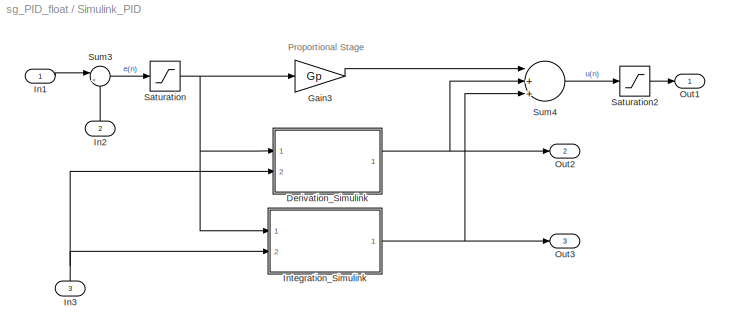
BLOCK [SubSystem] Simulink_PID
  FunctionWithSeparateData = off
  MaskHideContents = off
  MinAlgLoopOccurrences = off
  Opaque = off
  Ports = [3, 3]
  PropExecContextOutsideSubsystem = off
  RTWSystemCode = Auto
  RequestExecContextInheritance = off
  SID = 521
BLOCK [SubSystem] Simulink_PID/Derivation_Simulink
  FunctionWithSeparateData = off
  MaskHideContents = off
  MinAlgLoopOccurrences = off
  Opaque = off
  Ports = [2, 1]
  PropExecContextOutsideSubsystem = off
  RTWSystemCode = Auto
  RequestExecContextInheritance = off
  SID = 312
BLOCK [Sum] Simulink_PID/Derivation_Simulink/Add2
  InputSameDT = off
  Inputs = +-
  OutDataTypeStr = Inherit: Inherit via internal rule
  Ports = [2, 1]
  SID = 393
  SaturateOnIntegerOverflow = off
BLOCK [Sum] Simulink_PID/Derivation_Simulink/Add3
  InputSameDT = off
  Inputs = +-
  OutDataTypeStr = Inherit: Inherit via internal rule
  Ports = [2, 1]
  SID = 394
  SaturateOnIntegerOverflow = off
BLOCK [Constant] Simulink_PID/Derivation_Simulink/Constant3
  OutDataTypeStr = single
  SID = 395
  SampleTime = II
  Value = C
BLOCK [Delay] Simulink_PID/Derivation_Simulink/Delay1
  DelayLength = 1
  ExternalReset = Level hold
  InputPortMap = u0,r5
  Ports = [2, 1]
  SID = 396
BLOCK [Delay] Simulink_PID/Derivation_Simulink/Delay4
  DelayLength = 1
  ExternalReset = Level hold
  InputPortMap = u0,r5
  Ports = [2, 1]
  SID = 397
BLOCK [Gain] Simulink_PID/Derivation_Simulink/Gain1
  Gain = Gd
  OutDataTypeStr = Inherit: Inherit via internal rule
  ParamDataTypeStr = Inherit: Inherit via internal rule
  SID = 427
  SaturateOnIntegerOverflow = off
BLOCK [Inport] Simulink_PID/Derivation_Simulink/In1
  IconDisplay = Port number
  SID = 313
BLOCK [Inport] Simulink_PID/Derivation_Simulink/In2
  IconDisplay = Port number
  Port = 2
  SID = 399
BLOCK [Outport] Simulink_PID/Derivation_Simulink/Out1
  IconDisplay = Port number
  SID = 314
BLOCK [Product] Simulink_PID/Derivation_Simulink/Product1
  InputSameDT = off
  OutDataTypeStr = Inherit: Inherit via internal rule
  Ports = [2, 1]
  SID = 398
  SaturateOnIntegerOverflow = off
BLOCK [Gain] Simulink_PID/Gain3
  Gain = Gp
  OutDataTypeStr = Inherit: Inherit via internal rule
  ParamDataTypeStr = Inherit: Inherit via internal rule
  SID = 18
  SaturateOnIntegerOverflow = off
BLOCK [Inport] Simulink_PID/In1
  IconDisplay = Port number
  SID = 522
BLOCK [Inport] Simulink_PID/In2
  IconDisplay = Port number
  Port = 2
  SID = 524
BLOCK [Inport] Simulink_PID/In3
  IconDisplay = Port number
  Port = 3
  SID = 527
BLOCK [SubSystem] Simulink_PID/Integration_Simulink
  FunctionWithSeparateData = off
  MaskHideContents = off
  MinAlgLoopOccurrences = off
  Opaque = off
  Ports = [2, 1]
  PropExecContextOutsideSubsystem = off
  RTWSystemCode = Auto
  RequestExecContextInheritance = off
  SID = 324
BLOCK [Sum] Simulink_PID/Integration_Simulink/Add
  InputSameDT = off
  OutDataTypeStr = Inherit: Inherit via internal rule
  Ports = [2, 1]
  SID = 315
  SaturateOnIntegerOverflow = off
BLOCK [Sum] Simulink_PID/Integration_Simulink/Add1
  InputSameDT = off
  OutDataTypeStr = Inherit: Inherit via internal rule
  Ports = [2, 1]
  SID = 316
  SaturateOnIntegerOverflow = off
BLOCK [Delay] Simulink_PID/Integration_Simulink/Delay1
  DelayLength = 1
  ExternalReset = Level hold
  InputPortMap = u0,r5
  Ports = [2, 1]
  SID = 404
BLOCK [Delay] Simulink_PID/Integration_Simulink/Delay2
  DelayLength = 1
  ExternalReset = Level hold
  InputPortMap = u0,r5
  Ports = [2, 1]
  SID = 405
BLOCK [Gain] Simulink_PID/Integration_Simulink/Gain2
  Gain = Gi
  OutDataTypeStr = Inherit: Inherit via internal rule
  ParamDataTypeStr = Inherit: Inherit via internal rule
  SID = 320
  SaturateOnIntegerOverflow = off
BLOCK [Inport] Simulink_PID/Integration_Simulink/In1
  IconDisplay = Port number
  SID = 325
BLOCK [Inport] Simulink_PID/Integration_Simulink/In2
  IconDisplay = Port number
  Port = 2
  SID = 406
BLOCK [Outport] Simulink_PID/Integration_Simulink/Out1
  IconDisplay = Port number
  SID = 326
BLOCK [Saturate] Simulink_PID/Integration_Simulink/Saturation1
  InputPortMap = u0
  LowerLimit = min_clip
  Ports = [1, 1]
  SID = 323
  UpperLimit = max_clip
BLOCK [Outport] Simulink_PID/Out1
  IconDisplay = Port number
  SID = 523
BLOCK [Outport] Simulink_PID/Out2
  IconDisplay = Port number
  Port = 2
  SID = 525
BLOCK [Outport] Simulink_PID/Out3
  IconDisplay = Port number
  Port = 3
  SID = 531
BLOCK [Saturate] Simulink_PID/Saturation
  InputPortMap = u0
  LowerLimit = min_clip
  Ports = [1, 1]
  SID = 171
  UpperLimit = max_clip
BLOCK [Saturate] Simulink_PID/Saturation2
  InputPortMap = u0
  LowerLimit = min_clip
  Ports = [1, 1]
  SID = 173
  UpperLimit = max_clip
BLOCK [Sum] Simulink_PID/Sum3
  IconShape = round
  InputSameDT = off
  Inputs = |+-
  OutDataTypeStr = Inherit: Inherit via internal rule
  Ports = [2, 1]
  SID = 36
  SaturateOnIntegerOverflow = off
BLOCK [Sum] Simulink_PID/Sum4
  InputSameDT = off
  Inputs = |+++
  OutDataTypeStr = Inherit: Inherit via internal rule
  Ports = [3, 1]
  SID = 37
  SaturateOnIntegerOverflow = off
BLOCK [Step] Step
  After = 0
  Before = 1
  SID = 402
  SampleTime = II
BLOCK [Step] Step1
  After = Gi
  SID = 461
  SampleTime = II
BLOCK [Step] Step2
  After = 0
  Before = 1
  SID = 482
  SampleTime = II
BLOCK [Step] Step3
  After = Gd
  SID = 462
  SampleTime = II
BLOCK [Step] Step4
  SID = 483
  SampleTime = II
BLOCK [Step] Step6
  After = C
  SID = 463
  SampleTime = II
BLOCK [Step] Step7
  After = Gp
  SID = 464
  SampleTime = II
BLOCK [Step] Step8
  After = max_clip
  SID = 465
  SampleTime = II
BLOCK [Step] Step9
  After = min_clip
  SID = 466
  SampleTime = II
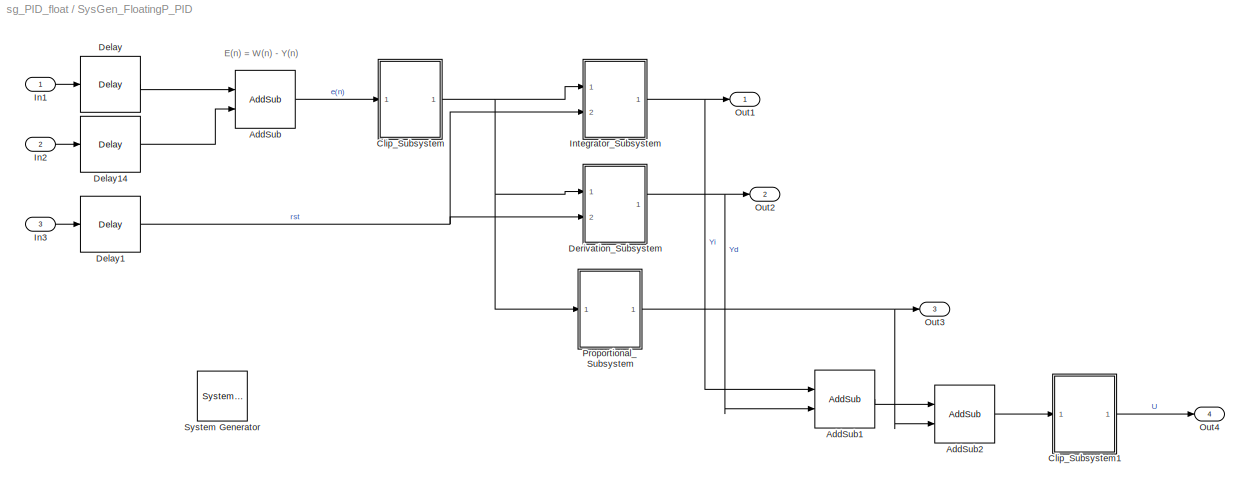
BLOCK [SubSystem] SysGen_FloatingP_PID
  FunctionWithSeparateData = off
  MaskDisplay = fprintf('','COMMENT: begin icon graphics');\npatch([0 60 60 0 0 ],[0 0 56 56 0 ],[0.77 0.82 0.91 ]);\nplot([0 60 60 0 0 ],[0 0 56 56 0 ]);\npatch([12.2 23.76 31.76 39.76 47.76 31.76 20.2 12.2 ],[36.88 36.88 44.88 36.88 44.88 44.88 44.88 36.88 ],[1 1 1 ]);\npatch([20.2 31.76 23.76 12.2 20.2 ],[28.88 28.88 36.88 36.88 28.88 ],[0.931 0.946 0.973 ]);\npatch([12.2 23.76 31.76 20.2 12.2 ],[20.88 20.88 2...<+603ch>
  MaskHideContents = off
  MaskIconFrame = on
  MaskIconOpaque = on
  MaskIconRotate = none
  MaskIconUnits = autoscale
  MaskPortRotate = default
  MinAlgLoopOccurrences = off
  Opaque = off
  Ports = [3, 4]
  PropExecContextOutsideSubsystem = off
  RTWSystemCode = Auto
  RequestExecContextInheritance = off
  SID = 282
BLOCK [Reference] SysGen_FloatingP_PID/ System Generator  REF=xbsIndex_r4/ System Generator
  AttributesFormatString = System\\nGenerator
  Impl_file = ISE Defaults
  Ports = []
  SID = 327
  SourceBlock = xbsIndex_r4/ System Generator
  SourceType = Xilinx System Generator Block
  Synth_file = XST Defaults
  Tag = genX
  UserData = DataTag1
  UserDataPersistent = on
  block_type = sysgen
  clock_wrapper = Clock Enables
  core_generation = According to Block Masks
  dbl_ovrd = According to Block Masks
  dcm_input_clock_period = 10
  deprecated_control = off
  directory = ./timing_v6lx240t
  eval_field = 0
  has_advanced_control = 0
  incr_netlist = off
  infoedit = System Generator
  package = ff1156
  part = xc6vlx240t
  proj_type = Project Navigator
  run_coregen = off
  sg_icon_stat = 50,50,0,0,token,white,0,58c5b5770fe5f7c311f53dbc6e73f0f6,right,,[ ],[ ]
  sg_mask_display = fprintf('','COMMENT: begin icon graphics');\npatch([0 50 50 0 0 ],[0 0 50 50 0 ],[1 1 1 ]);\npatch([1.6375 16.81 27.31 37.81 48.31 27.31 12.1375 1.6375 ],[36.655 36.655 47.155 36.655 47.155 47.155 47.155 36.655 ],[0.933333 0.203922 0.141176 ]);\npatch([12.1375 27.31 16.81 1.6375 12.1375 ],[26.155 26.155 36.655 36.655 26.155 ],[0.698039 0.0313725 0.219608 ]);\npatch([1.6375 16.81 27.31 12.1375 1.63...<+335ch>
  sggui_pos = 326,241,464,470
  simulink_period = 1
  speed = -2
  synthesis_tool = XST
  sysclk_period = 1.000000e+001
  testbench = off
  trim_vbits = Everywhere in SubSystem
  xilinxfamily = virtex6
BLOCK [Reference] SysGen_FloatingP_PID/AddSub  REF=xbsIndex_r4/AddSub
  Ports = [2, 1]
  SID = 175
  SourceBlock = xbsIndex_r4/AddSub
  SourceType = Xilinx Adder/Subtracter Block
  arith_type = Unsigned
  bin_pt = 14
  block_type = addsub
  dbl_ovrd = off
  en = off
  has_advanced_control = 0
  hw_selection = DSP48
  latency = 0
  mode = Subtraction
  n_bits = 16
  overflow = Wrap
  pipelined = off
  precision = Full
  quantization = Truncate
  sg_icon_stat = 60,58,2,1,white,blue,0,32e1f85f,right,,[ ],[ ]
  sggui_pos = -1,-1,-1,-1
  use_behavioral_HDL = off
  use_carryin = off
  use_carryout = off
  xl_area = [0,0,0,0,0,0,0]
  xl_use_area = off
BLOCK [Reference] SysGen_FloatingP_PID/AddSub1  REF=xbsIndex_r4/AddSub
  Ports = [2, 1]
  SID = 245
  SourceBlock = xbsIndex_r4/AddSub
  SourceType = Xilinx Adder/Subtracter Block
  arith_type = Unsigned
  bin_pt = 14
  block_type = addsub
  dbl_ovrd = off
  en = off
  has_advanced_control = 0
  hw_selection = DSP48
  latency = 0
  mode = Addition
  n_bits = 16
  overflow = Wrap
  pipelined = off
  precision = Full
  quantization = Truncate
  sg_icon_stat = 60,58,2,1,white,blue,0,e139daf6,right,,[ ],[ ]
  sggui_pos = -1,-1,-1,-1
  use_behavioral_HDL = off
  use_carryin = off
  use_carryout = off
  xl_area = [0,0,0,0,0,0,0]
  xl_use_area = off
BLOCK [Reference] SysGen_FloatingP_PID/AddSub2  REF=xbsIndex_r4/AddSub
  Ports = [2, 1]
  SID = 246
  SourceBlock = xbsIndex_r4/AddSub
  SourceType = Xilinx Adder/Subtracter Block
  arith_type = Unsigned
  bin_pt = 14
  block_type = addsub
  dbl_ovrd = off
  en = off
  has_advanced_control = 0
  hw_selection = DSP48
  latency = 0
  mode = Addition
  n_bits = 16
  overflow = Wrap
  pipelined = off
  precision = Full
  quantization = Truncate
  sg_icon_stat = 60,58,2,1,white,blue,0,e139daf6,right,,[ ],[ ]
  sggui_pos = -1,-1,-1,-1
  use_behavioral_HDL = off
  use_carryin = off
  use_carryout = off
  xl_area = [0,0,0,0,0,0,0]
  xl_use_area = off
BLOCK [SubSystem] SysGen_FloatingP_PID/Clip_Subsystem
  FunctionWithSeparateData = off
  MaskDisplay = fprintf('','COMMENT: begin icon graphics');\npatch([0 60 60 0 0 ],[0 0 58 58 0 ],[0.77 0.82 0.91 ]);\nplot([0 60 60 0 0 ],[0 0 58 58 0 ]);\npatch([12.2 23.76 31.76 39.76 47.76 31.76 20.2 12.2 ],[37.88 37.88 45.88 37.88 45.88 45.88 45.88 37.88 ],[1 1 1 ]);\npatch([20.2 31.76 23.76 12.2 20.2 ],[29.88 29.88 37.88 37.88 29.88 ],[0.931 0.946 0.973 ]);\npatch([12.2 23.76 31.76 20.2 12.2 ],[21.88 21.88 2...<+363ch>  <repeated x3 — deduplicated; at blocks: Clip_Subsystem, Clip_Subsystem1>
  MaskHideContents = off
  MaskIconFrame = on
  MaskIconOpaque = on
  MaskIconRotate = none
  MaskIconUnits = autoscale
  MaskPortRotate = default
  MinAlgLoopOccurrences = off
  Opaque = off
  Ports = [1, 1]
  PropExecContextOutsideSubsystem = off
  RTWSystemCode = Auto
  RequestExecContextInheritance = off
  SID = 198
BLOCK [Reference] SysGen_FloatingP_PID/Clip_Subsystem/Constant3  REF=xbsIndex_r4/Constant
  Ports = [0, 1]
  SID = 192
  SourceBlock = xbsIndex_r4/Constant
  SourceType = Xilinx Constant Block Block
  arith_type = Floating-point
  bin_pt = 14
  block_type = constant
  carry = CIN
  const = max_clip
  dbl_ovrd = off
  dsp48_infoedit = The use of this block for DSP48 instructions is deprecated.  Please use the Opmode block.
  equ = P=C
  exp_width = 8
  explicit_period = on
  frac_width = 24
  gui_display_data_type = Floating-point
  has_advanced_control = 0
  inp1 = P
  inp2 = PCIN>>17
  n_bits = 16
  opr = +
  opselect = C
  period = II
  preci_type = Single
  sg_icon_stat = 120,30,0,1,white,blue,0,346a66ac,right,,[ ],[ ]
  sg_mask_display = fprintf('','COMMENT: begin icon graphics');\npatch([0 120 120 0 0 ],[0 0 30 30 0 ],[0.77 0.82 0.91 ]);\nplot([0 120 120 0 0 ],[0 0 30 30 0 ]);\npatch([51.1 56.88 60.88 64.88 68.88 60.88 55.1 51.1 ],[19.44 19.44 23.44 19.44 23.44 23.44 23.44 19.44 ],[1 1 1 ]);\npatch([55.1 60.88 56.88 51.1 55.1 ],[15.44 15.44 19.44 19.44 15.44 ],[0.931 0.946 0.973 ]);\npatch([51.1 56.88 60.88 55.1 51.1 ],[11.44 11....<+314ch>  <repeated x3 — deduplicated; at blocks: Constant3>
  sggui_pos = -1,-1,-1,-1
BLOCK [Reference] SysGen_FloatingP_PID/Clip_Subsystem/Constant4  REF=xbsIndex_r4/Constant
  Ports = [0, 1]
  SID = 196
  SourceBlock = xbsIndex_r4/Constant
  SourceType = Xilinx Constant Block Block
  arith_type = Floating-point
  bin_pt = 14
  block_type = constant
  carry = CIN
  const = min_clip
  dbl_ovrd = off
  dsp48_infoedit = The use of this block for DSP48 instructions is deprecated.  Please use the Opmode block.
  equ = P=C
  exp_width = 8
  explicit_period = on
  frac_width = 24
  gui_display_data_type = Floating-point
  has_advanced_control = 0
  inp1 = P
  inp2 = PCIN>>17
  n_bits = 16
  opr = +
  opselect = C
  period = II
  preci_type = Single
  sg_icon_stat = 120,30,0,1,white,blue,0,516b7777,right,,[ ],[ ]
  sg_mask_display = fprintf('','COMMENT: begin icon graphics');\npatch([0 120 120 0 0 ],[0 0 30 30 0 ],[0.77 0.82 0.91 ]);\nplot([0 120 120 0 0 ],[0 0 30 30 0 ]);\npatch([51.1 56.88 60.88 64.88 68.88 60.88 55.1 51.1 ],[19.44 19.44 23.44 19.44 23.44 23.44 23.44 19.44 ],[1 1 1 ]);\npatch([55.1 60.88 56.88 51.1 55.1 ],[15.44 15.44 19.44 19.44 15.44 ],[0.931 0.946 0.973 ]);\npatch([51.1 56.88 60.88 55.1 51.1 ],[11.44 11....<+315ch>  <repeated x3 — deduplicated; at blocks: Constant4>
  sggui_pos = -1,-1,-1,-1
BLOCK [Inport] SysGen_FloatingP_PID/Clip_Subsystem/In1
  IconDisplay = Port number
  SID = 199
BLOCK [Reference] SysGen_FloatingP_PID/Clip_Subsystem/Mux  REF=xbsIndex_r4/Mux
  Ports = [3, 1]
  SID = 193
  SourceBlock = xbsIndex_r4/Mux
  SourceType = Xilinx Bus Multiplexer Block
  arith_type = Unsigned
  bin_pt = 14
  block_type = mux
  dbl_ovrd = off
  en = off
  has_advanced_control = 0
  inputs = 2
  latency = 0
  n_bits = 16
  overflow = Wrap
  precision = Full
  quantization = Truncate
  sg_icon_stat = 45,104,3,1,white,blue,3,eb98d690,right,,[ ],[ ]
  sg_mask_display = fprintf('','COMMENT: begin icon graphics');\npatch([0 45 45 0 0 ],[0 14.8571 89.1429 104 0 ],[0.77 0.82 0.91 ]);\nplot([0 45 45 0 0 ],[0 14.8571 89.1429 104 0 ]);\npatch([8.65 17.32 23.32 29.32 35.32 23.32 14.65 8.65 ],[58.66 58.66 64.66 58.66 64.66 64.66 64.66 58.66 ],[1 1 1 ]);\npatch([14.65 23.32 17.32 8.65 14.65 ],[52.66 52.66 58.66 58.66 52.66 ],[0.931 0.946 0.973 ]);\npatch([8.65 17.32 23.32...<+481ch>  <repeated x6 — deduplicated; at blocks: Mux, Mux1>
  sggui_pos = -1,-1,-1,-1
  xl_area = [0,0,0,0,0,0,0]
  xl_use_area = off
BLOCK [Reference] SysGen_FloatingP_PID/Clip_Subsystem/Mux1  REF=xbsIndex_r4/Mux
  Ports = [3, 1]
  SID = 197
  SourceBlock = xbsIndex_r4/Mux
  SourceType = Xilinx Bus Multiplexer Block
  arith_type = Unsigned
  bin_pt = 14
  block_type = mux
  dbl_ovrd = off
  en = off
  has_advanced_control = 0
  inputs = 2
  latency = 0
  n_bits = 16
  overflow = Wrap
  precision = Full
  quantization = Truncate
  sg_icon_stat = 45,104,3,1,white,blue,3,eb98d690,right,,[ ],[ ]
  sggui_pos = -1,-1,-1,-1
  xl_area = [0,0,0,0,0,0,0]
  xl_use_area = off
BLOCK [Outport] SysGen_FloatingP_PID/Clip_Subsystem/Out1
  IconDisplay = Port number
  SID = 200
BLOCK [Reference] SysGen_FloatingP_PID/Clip_Subsystem/Relational  REF=xbsIndex_r4/Relational
  Ports = [2, 1]
  SID = 191
  SourceBlock = xbsIndex_r4/Relational
  SourceType = Xilinx Arithmetic Relational Operator Block
  block_type = relational
  dbl_ovrd = off
  en = off
  has_advanced_control = 0
  latency = 0
  mode = a>=b
  sg_icon_stat = 55,56,2,1,white,blue,0,6218dc92,right,,[ ],[ ]
  sg_mask_display = fprintf('','COMMENT: begin icon graphics');\npatch([0 55 55 0 0 ],[0 0 56 56 0 ],[0.77 0.82 0.91 ]);\nplot([0 55 55 0 0 ],[0 0 56 56 0 ]);\npatch([11.425 21.54 28.54 35.54 42.54 28.54 18.425 11.425 ],[35.77 35.77 42.77 35.77 42.77 42.77 42.77 35.77 ],[1 1 1 ]);\npatch([18.425 28.54 21.54 11.425 18.425 ],[28.77 28.77 35.77 35.77 28.77 ],[0.931 0.946 0.973 ]);\npatch([11.425 21.54 28.54 18.425 11.42...<+477ch>  <repeated x6 — deduplicated; at blocks: Relational, Relational1>
  sggui_pos = -1,-1,-1,-1
  xl_area = [0,0,0,0,0,0,0]
  xl_use_area = off
BLOCK [Reference] SysGen_FloatingP_PID/Clip_Subsystem/Relational1  REF=xbsIndex_r4/Relational
  Ports = [2, 1]
  SID = 195
  SourceBlock = xbsIndex_r4/Relational
  SourceType = Xilinx Arithmetic Relational Operator Block
  block_type = relational
  dbl_ovrd = off
  en = off
  has_advanced_control = 0
  latency = 0
  mode = a<=b
  sg_icon_stat = 55,56,2,1,white,blue,0,52e4b236,right,,[ ],[ ]
  sggui_pos = -1,-1,-1,-1
  xl_area = [0,0,0,0,0,0,0]
  xl_use_area = off
BLOCK [SubSystem] SysGen_FloatingP_PID/Clip_Subsystem1
  FunctionWithSeparateData = off
  MaskHideContents = off
  MaskIconFrame = on
  MaskIconOpaque = on
  MaskIconRotate = none
  MaskIconUnits = autoscale
  MaskPortRotate = default
  MinAlgLoopOccurrences = off
  Opaque = off
  Ports = [1, 1]
  PropExecContextOutsideSubsystem = off
  RTWSystemCode = Auto
  RequestExecContextInheritance = off
  SID = 249
BLOCK [Reference] SysGen_FloatingP_PID/Clip_Subsystem1/Constant3  REF=xbsIndex_r4/Constant
  Ports = [0, 1]
  SID = 251
  SourceBlock = xbsIndex_r4/Constant
  SourceType = Xilinx Constant Block Block
  arith_type = Floating-point
  bin_pt = 14
  block_type = constant
  carry = CIN
  const = max_clip
  dbl_ovrd = off
  dsp48_infoedit = The use of this block for DSP48 instructions is deprecated.  Please use the Opmode block.
  equ = P=C
  exp_width = 8
  explicit_period = on
  frac_width = 24
  gui_display_data_type = Floating-point
  has_advanced_control = 0
  inp1 = P
  inp2 = PCIN>>17
  n_bits = 16
  opr = +
  opselect = C
  period = II
  preci_type = Single
  sg_icon_stat = 120,30,0,1,white,blue,0,346a66ac,right,,[ ],[ ]
  sggui_pos = -1,-1,-1,-1
BLOCK [Reference] SysGen_FloatingP_PID/Clip_Subsystem1/Constant4  REF=xbsIndex_r4/Constant
  Ports = [0, 1]
  SID = 252
  SourceBlock = xbsIndex_r4/Constant
  SourceType = Xilinx Constant Block Block
  arith_type = Floating-point
  bin_pt = 14
  block_type = constant
  carry = CIN
  const = min_clip
  dbl_ovrd = off
  dsp48_infoedit = The use of this block for DSP48 instructions is deprecated.  Please use the Opmode block.
  equ = P=C
  exp_width = 8
  explicit_period = on
  frac_width = 24
  gui_display_data_type = Floating-point
  has_advanced_control = 0
  inp1 = P
  inp2 = PCIN>>17
  n_bits = 16
  opr = +
  opselect = C
  period = II
  preci_type = Single
  sg_icon_stat = 120,30,0,1,white,blue,0,516b7777,right,,[ ],[ ]
  sggui_pos = -1,-1,-1,-1
BLOCK [Inport] SysGen_FloatingP_PID/Clip_Subsystem1/In1
  IconDisplay = Port number
  SID = 250
BLOCK [Reference] SysGen_FloatingP_PID/Clip_Subsystem1/Mux  REF=xbsIndex_r4/Mux
  Ports = [3, 1]
  SID = 253
  SourceBlock = xbsIndex_r4/Mux
  SourceType = Xilinx Bus Multiplexer Block
  arith_type = Unsigned
  bin_pt = 14
  block_type = mux
  dbl_ovrd = off
  en = off
  has_advanced_control = 0
  inputs = 2
  latency = 0
  n_bits = 16
  overflow = Wrap
  precision = Full
  quantization = Truncate
  sg_icon_stat = 45,104,3,1,white,blue,3,eb98d690,right,,[ ],[ ]
  sggui_pos = -1,-1,-1,-1
  xl_area = [0,0,0,0,0,0,0]
  xl_use_area = off
BLOCK [Reference] SysGen_FloatingP_PID/Clip_Subsystem1/Mux1  REF=xbsIndex_r4/Mux
  Ports = [3, 1]
  SID = 254
  SourceBlock = xbsIndex_r4/Mux
  SourceType = Xilinx Bus Multiplexer Block
  arith_type = Unsigned
  bin_pt = 14
  block_type = mux
  dbl_ovrd = off
  en = off
  has_advanced_control = 0
  inputs = 2
  latency = 0
  n_bits = 16
  overflow = Wrap
  precision = Full
  quantization = Truncate
  sg_icon_stat = 45,104,3,1,white,blue,3,eb98d690,right,,[ ],[ ]
  sggui_pos = -1,-1,-1,-1
  xl_area = [0,0,0,0,0,0,0]
  xl_use_area = off
BLOCK [Outport] SysGen_FloatingP_PID/Clip_Subsystem1/Out1
  IconDisplay = Port number
  SID = 257
BLOCK [Reference] SysGen_FloatingP_PID/Clip_Subsystem1/Relational  REF=xbsIndex_r4/Relational
  Ports = [2, 1]
  SID = 255
  SourceBlock = xbsIndex_r4/Relational
  SourceType = Xilinx Arithmetic Relational Operator Block
  block_type = relational
  dbl_ovrd = off
  en = off
  has_advanced_control = 0
  latency = 0
  mode = a>=b
  sg_icon_stat = 55,56,2,1,white,blue,0,6218dc92,right,,[ ],[ ]
  sggui_pos = -1,-1,-1,-1
  xl_area = [0,0,0,0,0,0,0]
  xl_use_area = off
BLOCK [Reference] SysGen_FloatingP_PID/Clip_Subsystem1/Relational1  REF=xbsIndex_r4/Relational
  Ports = [2, 1]
  SID = 256
  SourceBlock = xbsIndex_r4/Relational
  SourceType = Xilinx Arithmetic Relational Operator Block
  block_type = relational
  dbl_ovrd = off
  en = off
  has_advanced_control = 0
  latency = 0
  mode = a<=b
  sg_icon_stat = 55,56,2,1,white,blue,0,52e4b236,right,,[ ],[ ]
  sggui_pos = -1,-1,-1,-1
  xl_area = [0,0,0,0,0,0,0]
  xl_use_area = off
BLOCK [Reference] SysGen_FloatingP_PID/Delay  REF=xbsIndex_r4/Delay
  Ports = [1, 1]
  SID = 176
  SourceBlock = xbsIndex_r4/Delay
  SourceType = Xilinx Delay Block
  block_type = delay
  dbl_ovrd = off
  en = off
  has_advanced_control = 0
  infoedit = Hardware notes: A delay line is a chain, each link of which is an SRL16 followed by a flip-flop.
  infoeditControl = Selection of Reset will increase slice count due to use of real FFs and instead of SRLs
  latency = 1
  reg_retiming = off
  rst = off
  sg_icon_stat = 60,56,1,1,white,blue,0,07b98262,right,,[ ],[ ]
  sg_mask_display = fprintf('','COMMENT: begin icon graphics');\npatch([0 60 60 0 0 ],[0 0 56 56 0 ],[0.77 0.82 0.91 ]);\nplot([0 60 60 0 0 ],[0 0 56 56 0 ]);\npatch([12.2 23.76 31.76 39.76 47.76 31.76 20.2 12.2 ],[36.88 36.88 44.88 36.88 44.88 44.88 44.88 36.88 ],[1 1 1 ]);\npatch([20.2 31.76 23.76 12.2 20.2 ],[28.88 28.88 36.88 36.88 28.88 ],[0.931 0.946 0.973 ]);\npatch([12.2 23.76 31.76 20.2 12.2 ],[20.88 20.88 2...<+320ch>  <repeated x3 — deduplicated; at blocks: Delay, Delay1, Delay14>
  sggui_pos = -1,-1,-1,-1
  xl_area = [0,0,0,0,0,0,0]
  xl_use_area = off
BLOCK [Reference] SysGen_FloatingP_PID/Delay1  REF=xbsIndex_r4/Delay
  Ports = [1, 1]
  SID = 391
  SourceBlock = xbsIndex_r4/Delay
  SourceType = Xilinx Delay Block
  block_type = delay
  dbl_ovrd = off
  en = off
  has_advanced_control = 0
  infoedit = Hardware notes: A delay line is a chain, each link of which is an SRL16 followed by a flip-flop.
  infoeditControl = Selection of Reset will increase slice count due to use of real FFs and instead of SRLs
  latency = 1
  reg_retiming = off
  rst = off
  sg_icon_stat = 60,56,1,1,white,blue,0,07b98262,right,,[ ],[ ]
  sggui_pos = -1,-1,-1,-1
  xl_area = [0,0,0,0,0,0,0]
  xl_use_area = off
BLOCK [Reference] SysGen_FloatingP_PID/Delay14  REF=xbsIndex_r4/Delay
  Ports = [1, 1]
  SID = 178
  SourceBlock = xbsIndex_r4/Delay
  SourceType = Xilinx Delay Block
  block_type = delay
  dbl_ovrd = off
  en = off
  has_advanced_control = 0
  infoedit = Hardware notes: A delay line is a chain, each link of which is an SRL16 followed by a flip-flop.
  infoeditControl = Selection of Reset will increase slice count due to use of real FFs and instead of SRLs
  latency = 1
  reg_retiming = off
  rst = off
  sg_icon_stat = 60,56,1,1,white,blue,0,07b98262,right,,[ ],[ ]
  sggui_pos = -1,-1,-1,-1
  xl_area = [0,0,0,0,0,0,0]
  xl_use_area = off
BLOCK [SubSystem] SysGen_FloatingP_PID/Derivation_Subsystem
  FunctionWithSeparateData = off
  MaskDisplay = fprintf('','COMMENT: begin icon graphics');\npatch([0 60 60 0 0 ],[0 0 58 58 0 ],[0.77 0.82 0.91 ]);\nplot([0 60 60 0 0 ],[0 0 58 58 0 ]);\npatch([12.2 23.76 31.76 39.76 47.76 31.76 20.2 12.2 ],[37.88 37.88 45.88 37.88 45.88 45.88 45.88 37.88 ],[1 1 1 ]);\npatch([20.2 31.76 23.76 12.2 20.2 ],[29.88 29.88 37.88 37.88 29.88 ],[0.931 0.946 0.973 ]);\npatch([12.2 23.76 31.76 20.2 12.2 ],[21.88 21.88 2...<+360ch>
  MaskHideContents = off
  MaskIconFrame = on
  MaskIconOpaque = on
  MaskIconRotate = none
  MaskIconUnits = autoscale
  MaskPortRotate = default
  MinAlgLoopOccurrences = off
  Opaque = off
  Ports = [2, 1]
  PropExecContextOutsideSubsystem = off
  RTWSystemCode = Auto
  RequestExecContextInheritance = off
  SID = 201
BLOCK [Reference] SysGen_FloatingP_PID/Derivation_Subsystem/AddSub1  REF=xbsIndex_r4/AddSub
  Ports = [2, 1]
  SID = 203
  SourceBlock = xbsIndex_r4/AddSub
  SourceType = Xilinx Adder/Subtracter Block
  arith_type = Unsigned
  bin_pt = 14
  block_type = addsub
  dbl_ovrd = off
  en = off
  has_advanced_control = 0
  hw_selection = Fabric
  latency = 0
  mode = Subtraction
  n_bits = 16
  overflow = Wrap
  pipelined = off
  precision = Full
  quantization = Truncate
  sg_icon_stat = 60,58,2,1,white,blue,0,32e1f85f,right,,[ ],[ ]
  sggui_pos = -1,-1,-1,-1
  use_behavioral_HDL = off
  use_carryin = off
  use_carryout = off
  xl_area = [0,0,0,0,0,0,0]
  xl_use_area = off
BLOCK [Reference] SysGen_FloatingP_PID/Derivation_Subsystem/AddSub2  REF=xbsIndex_r4/AddSub
  Ports = [2, 1]
  SID = 204
  SourceBlock = xbsIndex_r4/AddSub
  SourceType = Xilinx Adder/Subtracter Block
  arith_type = Unsigned
  bin_pt = 14
  block_type = addsub
  dbl_ovrd = off
  en = off
  has_advanced_control = 0
  hw_selection = Fabric
  latency = 0
  mode = Subtraction
  n_bits = 16
  overflow = Wrap
  pipelined = off
  precision = Full
  quantization = Truncate
  sg_icon_stat = 60,58,2,1,white,blue,0,32e1f85f,right,,[ ],[ ]
  sggui_pos = -1,-1,-1,-1
  use_behavioral_HDL = off
  use_carryin = off
  use_carryout = off
  xl_area = [0,0,0,0,0,0,0]
  xl_use_area = off
BLOCK [Reference] SysGen_FloatingP_PID/Derivation_Subsystem/Constant1  REF=xbsIndex_r4/Constant
  Ports = [0, 1]
  SID = 205
  SourceBlock = xbsIndex_r4/Constant
  SourceType = Xilinx Constant Block Block
  arith_type = Floating-point
  bin_pt = 14
  block_type = constant
  carry = CIN
  const = Gd
  dbl_ovrd = off
  dsp48_infoedit = The use of this block for DSP48 instructions is deprecated.  Please use the Opmode block.
  equ = P=C
  exp_width = 8
  explicit_period = on
  frac_width = 24
  gui_display_data_type = Floating-point
  has_advanced_control = 0
  inp1 = P
  inp2 = PCIN>>17
  n_bits = 16
  opr = +
  opselect = C
  period = II
  preci_type = Single
  sg_icon_stat = 120,30,0,1,white,blue,0,e777a363,right,,[ ],[ ]
  sg_mask_display = fprintf('','COMMENT: begin icon graphics');\npatch([0 120 120 0 0 ],[0 0 30 30 0 ],[0.77 0.82 0.91 ]);\nplot([0 120 120 0 0 ],[0 0 30 30 0 ]);\npatch([51.1 56.88 60.88 64.88 68.88 60.88 55.1 51.1 ],[19.44 19.44 23.44 19.44 23.44 23.44 23.44 19.44 ],[1 1 1 ]);\npatch([55.1 60.88 56.88 51.1 55.1 ],[15.44 15.44 19.44 19.44 15.44 ],[0.931 0.946 0.973 ]);\npatch([51.1 56.88 60.88 55.1 51.1 ],[11.44 11....<+330ch>
  sggui_pos = -1,-1,-1,-1
BLOCK [Reference] SysGen_FloatingP_PID/Derivation_Subsystem/Constant2  REF=xbsIndex_r4/Constant
  Ports = [0, 1]
  SID = 206
  SourceBlock = xbsIndex_r4/Constant
  SourceType = Xilinx Constant Block Block
  arith_type = Floating-point
  bin_pt = 14
  block_type = constant
  carry = CIN
  const = C
  dbl_ovrd = off
  dsp48_infoedit = The use of this block for DSP48 instructions is deprecated.  Please use the Opmode block.
  equ = P=C
  exp_width = 8
  explicit_period = on
  frac_width = 24
  gui_display_data_type = Floating-point
  has_advanced_control = 0
  inp1 = P
  inp2 = PCIN>>17
  n_bits = 16
  opr = +
  opselect = C
  period = II
  preci_type = Single
  sg_icon_stat = 120,30,0,1,white,blue,0,f3ea0a29,left,,[ ],[ ]
  sg_mask_display = fprintf('','COMMENT: begin icon graphics');\npatch([0 120 120 0 0 ],[0 0 30 30 0 ],[0.77 0.82 0.91 ]);\nplot([0 120 120 0 0 ],[0 0 30 30 0 ]);\npatch([51.1 56.88 60.88 64.88 68.88 60.88 55.1 51.1 ],[19.44 19.44 23.44 19.44 23.44 23.44 23.44 19.44 ],[1 1 1 ]);\npatch([55.1 60.88 56.88 51.1 55.1 ],[15.44 15.44 19.44 19.44 15.44 ],[0.931 0.946 0.973 ]);\npatch([51.1 56.88 60.88 55.1 51.1 ],[11.44 11....<+332ch>
  sggui_pos = -1,-1,-1,-1
BLOCK [Inport] SysGen_FloatingP_PID/Derivation_Subsystem/In1
  IconDisplay = Port number
  SID = 202
BLOCK [Inport] SysGen_FloatingP_PID/Derivation_Subsystem/In2
  IconDisplay = Port number
  Port = 2
  SID = 387
BLOCK [Reference] SysGen_FloatingP_PID/Derivation_Subsystem/Mult  REF=xbsIndex_r4/Mult
  Ports = [2, 1]
  SID = 211
  SourceBlock = xbsIndex_r4/Mult
  SourceType = Xilinx Multiplier Block
  arith_type = Signed  (2's comp)
  bin_pt = 14
  block_type = mult
  dbl_ovrd = off
  en = off
  has_advanced_control = 0
  infoedit = Hardware notes: To check for the optimum internal pipeline stages of the dedicated multiplier you must select 'Test for optimum pipelining'.<br><br>Optimization Goal: For implementation into device fabric (LUTs), the Speed or Area optimization will take effect only if it's supported by IP for the particular device family. Otherwise, the results will be identical regardless of the selection.  <repeated x4 — deduplicated; at blocks: Mult, Mult1>
  latency = 0
  n_bits = 16
  opt = Speed
  optimum_pipeline = off
  overflow = Wrap
  pipeline = on
  placement_style = Triangular
  precision = Full
  quantization = Truncate
  sg_icon_stat = 55,55,2,1,white,blue,0,658d65c4,right,,[ ],[ ]
  sg_mask_display = fprintf('','COMMENT: begin icon graphics');\npatch([0 55 55 0 0 ],[0 0 55 55 0 ],[0.77 0.82 0.91 ]);\nplot([0 55 55 0 0 ],[0 0 55 55 0 ]);\npatch([11.425 21.54 28.54 35.54 42.54 28.54 18.425 11.425 ],[34.77 34.77 41.77 34.77 41.77 41.77 41.77 34.77 ],[1 1 1 ]);\npatch([18.425 28.54 21.54 11.425 18.425 ],[27.77 27.77 34.77 34.77 27.77 ],[0.931 0.946 0.973 ]);\npatch([11.425 21.54 28.54 18.425 11.42...<+479ch>  <repeated x4 — deduplicated; at blocks: Mult, Mult1>
  sggui_pos = -1,-1,-1,-1
  use_behavioral_HDL = off
  use_embedded = on
  use_rpm = on
  xl_area = [0,0,0,0,0,0,0]
  xl_use_area = off
BLOCK [Reference] SysGen_FloatingP_PID/Derivation_Subsystem/Mult1  REF=xbsIndex_r4/Mult
  Ports = [2, 1]
  SID = 212
  SourceBlock = xbsIndex_r4/Mult
  SourceType = Xilinx Multiplier Block
  arith_type = Signed  (2's comp)
  bin_pt = 14
  block_type = mult
  dbl_ovrd = off
  en = off
  has_advanced_control = 0
  latency = 0
  n_bits = 16
  opt = Speed
  optimum_pipeline = off
  overflow = Wrap
  pipeline = on
  placement_style = Triangular
  precision = Full
  quantization = Truncate
  sg_icon_stat = 55,55,2,1,white,blue,0,658d65c4,left,,[ ],[ ]
  sggui_pos = -1,-1,-1,-1
  use_behavioral_HDL = off
  use_embedded = on
  use_rpm = on
  xl_area = [0,0,0,0,0,0,0]
  xl_use_area = off
BLOCK [Outport] SysGen_FloatingP_PID/Derivation_Subsystem/Out1
  IconDisplay = Port number
  SID = 217
BLOCK [Reference] SysGen_FloatingP_PID/Derivation_Subsystem/Register  REF=xbsIndex_r4/Register
  Ports = [2, 1]
  SID = 385
  SourceBlock = xbsIndex_r4/Register
  SourceType = Xilinx Register Block
  block_type = register
  dbl_ovrd = off
  en = off
  has_advanced_control = 0
  init = 0
  rst = on
  sg_icon_stat = 60,56,2,1,white,blue,0,140cc11c,right,,[ ],[ ]
  sg_mask_display = fprintf('','COMMENT: begin icon graphics');\npatch([0 60 60 0 0 ],[0 0 56 56 0 ],[0.77 0.82 0.91 ]);\nplot([0 60 60 0 0 ],[0 0 56 56 0 ]);\npatch([12.2 23.76 31.76 39.76 47.76 31.76 20.2 12.2 ],[36.88 36.88 44.88 36.88 44.88 44.88 44.88 36.88 ],[1 1 1 ]);\npatch([20.2 31.76 23.76 12.2 20.2 ],[28.88 28.88 36.88 36.88 28.88 ],[0.931 0.946 0.973 ]);\npatch([12.2 23.76 31.76 20.2 12.2 ],[20.88 20.88 2...<+448ch>  <repeated x3 — deduplicated; at blocks: Register, Register1, Register2>
  sggui_pos = -1,-1,-1,-1
  xl_area = [0,0,0,0,0,0,0]
  xl_use_area = off
BLOCK [Reference] SysGen_FloatingP_PID/Derivation_Subsystem/Register1  REF=xbsIndex_r4/Register
  Ports = [2, 1]
  SID = 386
  SourceBlock = xbsIndex_r4/Register
  SourceType = Xilinx Register Block
  block_type = register
  dbl_ovrd = off
  en = off
  has_advanced_control = 0
  init = 0
  rst = on
  sg_icon_stat = 56,60,2,1,white,blue,0,140cc11c,down,,[ ],[ ]
  sg_mask_display = fprintf('','COMMENT: begin icon graphics');\npatch([0 56 56 0 0 ],[0 0 60 60 0 ],[0.77 0.82 0.91 ]);\nplot([0 56 56 0 0 ],[0 0 60 60 0 ]);\npatch([10.2 21.76 29.76 37.76 45.76 29.76 18.2 10.2 ],[38.88 38.88 46.88 38.88 46.88 46.88 46.88 38.88 ],[1 1 1 ]);\npatch([18.2 29.76 21.76 10.2 18.2 ],[30.88 30.88 38.88 38.88 30.88 ],[0.931 0.946 0.973 ]);\npatch([10.2 21.76 29.76 18.2 10.2 ],[22.88 22.88 3...<+448ch>
  sggui_pos = -1,-1,-1,-1
  xl_area = [0,0,0,0,0,0,0]
  xl_use_area = off
BLOCK [Inport] SysGen_FloatingP_PID/In1
  IconDisplay = Port number
  SID = 283
BLOCK [Inport] SysGen_FloatingP_PID/In2
  IconDisplay = Port number
  Port = 2
  SID = 285
BLOCK [Inport] SysGen_FloatingP_PID/In3
  IconDisplay = Port number
  Port = 3
  SID = 392
BLOCK [SubSystem] SysGen_FloatingP_PID/Integrator_Subsystem
  FunctionWithSeparateData = off
  MaskDisplay = fprintf('','COMMENT: begin icon graphics');\npatch([0 60 60 0 0 ],[0 0 58 58 0 ],[0.77 0.82 0.91 ]);\nplot([0 60 60 0 0 ],[0 0 58 58 0 ]);\npatch([12.2 23.76 31.76 39.76 47.76 31.76 20.2 12.2 ],[37.88 37.88 45.88 37.88 45.88 45.88 45.88 37.88 ],[1 1 1 ]);\npatch([20.2 31.76 23.76 12.2 20.2 ],[29.88 29.88 37.88 37.88 29.88 ],[0.931 0.946 0.973 ]);\npatch([12.2 23.76 31.76 20.2 12.2 ],[21.88 21.88 2...<+360ch>
  MaskHideContents = off
  MaskIconFrame = on
  MaskIconOpaque = on
  MaskIconRotate = none
  MaskIconUnits = autoscale
  MaskPortRotate = default
  MinAlgLoopOccurrences = off
  Opaque = off
  Ports = [2, 1]
  PropExecContextOutsideSubsystem = off
  RTWSystemCode = Auto
  RequestExecContextInheritance = off
  SID = 218
BLOCK [Reference] SysGen_FloatingP_PID/Integrator_Subsystem/AddSub2  REF=xbsIndex_r4/AddSub
  Ports = [2, 1]
  SID = 278
  SourceBlock = xbsIndex_r4/AddSub
  SourceType = Xilinx Adder/Subtracter Block
  arith_type = Unsigned
  bin_pt = 14
  block_type = addsub
  dbl_ovrd = off
  en = off
  has_advanced_control = 0
  hw_selection = DSP48
  latency = 0
  mode = Addition
  n_bits = 16
  overflow = Wrap
  pipelined = off
  precision = Full
  quantization = Truncate
  sg_icon_stat = 60,58,2,1,white,blue,0,e139daf6,right,,[ ],[ ]
  sggui_pos = -1,-1,-1,-1
  use_behavioral_HDL = off
  use_carryin = off
  use_carryout = off
  xl_area = [0,0,0,0,0,0,0]
  xl_use_area = off
BLOCK [Reference] SysGen_FloatingP_PID/Integrator_Subsystem/AddSub3  REF=xbsIndex_r4/AddSub
  Ports = [2, 1]
  SID = 276
  SourceBlock = xbsIndex_r4/AddSub
  SourceType = Xilinx Adder/Subtracter Block
  arith_type = Unsigned
  bin_pt = 14
  block_type = addsub
  dbl_ovrd = off
  en = off
  has_advanced_control = 0
  hw_selection = DSP48
  latency = 0
  mode = Addition
  n_bits = 16
  overflow = Wrap
  pipelined = off
  precision = Full
  quantization = Truncate
  sg_icon_stat = 60,58,2,1,white,blue,0,e139daf6,right,,[ ],[ ]
  sggui_pos = -1,-1,-1,-1
  use_behavioral_HDL = off
  use_carryin = off
  use_carryout = off
  xl_area = [0,0,0,0,0,0,0]
  xl_use_area = off
BLOCK [SubSystem] SysGen_FloatingP_PID/Integrator_Subsystem/Clip_Subsystem1
  FunctionWithSeparateData = off
  MaskHideContents = off
  MaskIconFrame = on
  MaskIconOpaque = on
  MaskIconRotate = none
  MaskIconUnits = autoscale
  MaskPortRotate = default
  MinAlgLoopOccurrences = off
  Opaque = off
  Ports = [1, 1]
  PropExecContextOutsideSubsystem = off
  RTWSystemCode = Auto
  RequestExecContextInheritance = off
  SID = 267
BLOCK [Reference] SysGen_FloatingP_PID/Integrator_Subsystem/Clip_Subsystem1/Constant3  REF=xbsIndex_r4/Constant
  Ports = [0, 1]
  SID = 269
  SourceBlock = xbsIndex_r4/Constant
  SourceType = Xilinx Constant Block Block
  arith_type = Floating-point
  bin_pt = 14
  block_type = constant
  carry = CIN
  const = max_clip
  dbl_ovrd = off
  dsp48_infoedit = The use of this block for DSP48 instructions is deprecated.  Please use the Opmode block.
  equ = P=C
  exp_width = 8
  explicit_period = on
  frac_width = 24
  gui_display_data_type = Floating-point
  has_advanced_control = 0
  inp1 = P
  inp2 = PCIN>>17
  n_bits = 16
  opr = +
  opselect = C
  period = II
  preci_type = Single
  sg_icon_stat = 120,30,0,1,white,blue,0,346a66ac,right,,[ ],[ ]
  sggui_pos = -1,-1,-1,-1
BLOCK [Reference] SysGen_FloatingP_PID/Integrator_Subsystem/Clip_Subsystem1/Constant4  REF=xbsIndex_r4/Constant
  Ports = [0, 1]
  SID = 270
  SourceBlock = xbsIndex_r4/Constant
  SourceType = Xilinx Constant Block Block
  arith_type = Floating-point
  bin_pt = 14
  block_type = constant
  carry = CIN
  const = min_clip
  dbl_ovrd = off
  dsp48_infoedit = The use of this block for DSP48 instructions is deprecated.  Please use the Opmode block.
  equ = P=C
  exp_width = 8
  explicit_period = on
  frac_width = 24
  gui_display_data_type = Floating-point
  has_advanced_control = 0
  inp1 = P
  inp2 = PCIN>>17
  n_bits = 16
  opr = +
  opselect = C
  period = II
  preci_type = Single
  sg_icon_stat = 120,30,0,1,white,blue,0,516b7777,right,,[ ],[ ]
  sggui_pos = -1,-1,-1,-1
BLOCK [Inport] SysGen_FloatingP_PID/Integrator_Subsystem/Clip_Subsystem1/In1
  IconDisplay = Port number
  SID = 268
BLOCK [Reference] SysGen_FloatingP_PID/Integrator_Subsystem/Clip_Subsystem1/Mux  REF=xbsIndex_r4/Mux
  Ports = [3, 1]
  SID = 271
  SourceBlock = xbsIndex_r4/Mux
  SourceType = Xilinx Bus Multiplexer Block
  arith_type = Unsigned
  bin_pt = 14
  block_type = mux
  dbl_ovrd = off
  en = off
  has_advanced_control = 0
  inputs = 2
  latency = 0
  n_bits = 16
  overflow = Wrap
  precision = Full
  quantization = Truncate
  sg_icon_stat = 45,104,3,1,white,blue,3,eb98d690,right,,[ ],[ ]
  sggui_pos = -1,-1,-1,-1
  xl_area = [0,0,0,0,0,0,0]
  xl_use_area = off
BLOCK [Reference] SysGen_FloatingP_PID/Integrator_Subsystem/Clip_Subsystem1/Mux1  REF=xbsIndex_r4/Mux
  Ports = [3, 1]
  SID = 272
  SourceBlock = xbsIndex_r4/Mux
  SourceType = Xilinx Bus Multiplexer Block
  arith_type = Unsigned
  bin_pt = 14
  block_type = mux
  dbl_ovrd = off
  en = off
  has_advanced_control = 0
  inputs = 2
  latency = 0
  n_bits = 16
  overflow = Wrap
  precision = Full
  quantization = Truncate
  sg_icon_stat = 45,104,3,1,white,blue,3,eb98d690,right,,[ ],[ ]
  sggui_pos = -1,-1,-1,-1
  xl_area = [0,0,0,0,0,0,0]
  xl_use_area = off
BLOCK [Outport] SysGen_FloatingP_PID/Integrator_Subsystem/Clip_Subsystem1/Out1
  IconDisplay = Port number
  SID = 275
BLOCK [Reference] SysGen_FloatingP_PID/Integrator_Subsystem/Clip_Subsystem1/Relational  REF=xbsIndex_r4/Relational
  Ports = [2, 1]
  SID = 273
  SourceBlock = xbsIndex_r4/Relational
  SourceType = Xilinx Arithmetic Relational Operator Block
  block_type = relational
  dbl_ovrd = off
  en = off
  has_advanced_control = 0
  latency = 0
  mode = a>=b
  sg_icon_stat = 55,56,2,1,white,blue,0,6218dc92,right,,[ ],[ ]
  sggui_pos = -1,-1,-1,-1
  xl_area = [0,0,0,0,0,0,0]
  xl_use_area = off
BLOCK [Reference] SysGen_FloatingP_PID/Integrator_Subsystem/Clip_Subsystem1/Relational1  REF=xbsIndex_r4/Relational
  Ports = [2, 1]
  SID = 274
  SourceBlock = xbsIndex_r4/Relational
  SourceType = Xilinx Arithmetic Relational Operator Block
  block_type = relational
  dbl_ovrd = off
  en = off
  has_advanced_control = 0
  latency = 0
  mode = a<=b
  sg_icon_stat = 55,56,2,1,white,blue,0,52e4b236,right,,[ ],[ ]
  sggui_pos = -1,-1,-1,-1
  xl_area = [0,0,0,0,0,0,0]
  xl_use_area = off
BLOCK [Reference] SysGen_FloatingP_PID/Integrator_Subsystem/Constant1  REF=xbsIndex_r4/Constant
  Ports = [0, 1]
  SID = 222
  SourceBlock = xbsIndex_r4/Constant
  SourceType = Xilinx Constant Block Block
  arith_type = Floating-point
  bin_pt = 14
  block_type = constant
  carry = CIN
  const = Gi
  dbl_ovrd = off
  dsp48_infoedit = The use of this block for DSP48 instructions is deprecated.  Please use the Opmode block.
  equ = P=C
  exp_width = 8
  explicit_period = on
  frac_width = 24
  gui_display_data_type = Floating-point
  has_advanced_control = 0
  inp1 = P
  inp2 = PCIN>>17
  n_bits = 16
  opr = +
  opselect = C
  period = II
  preci_type = Single
  sg_icon_stat = 120,30,0,1,white,blue,0,58945f68,left,,[ ],[ ]
  sg_mask_display = fprintf('','COMMENT: begin icon graphics');\npatch([0 120 120 0 0 ],[0 0 30 30 0 ],[0.77 0.82 0.91 ]);\nplot([0 120 120 0 0 ],[0 0 30 30 0 ]);\npatch([51.1 56.88 60.88 64.88 68.88 60.88 55.1 51.1 ],[19.44 19.44 23.44 19.44 23.44 23.44 23.44 19.44 ],[1 1 1 ]);\npatch([55.1 60.88 56.88 51.1 55.1 ],[15.44 15.44 19.44 19.44 15.44 ],[0.931 0.946 0.973 ]);\npatch([51.1 56.88 60.88 55.1 51.1 ],[11.44 11....<+331ch>
  sggui_pos = -1,-1,-1,-1
BLOCK [Inport] SysGen_FloatingP_PID/Integrator_Subsystem/In1
  IconDisplay = Port number
  SID = 219
BLOCK [Inport] SysGen_FloatingP_PID/Integrator_Subsystem/In2
  IconDisplay = Port number
  Port = 2
  SID = 390
BLOCK [Reference] SysGen_FloatingP_PID/Integrator_Subsystem/Mult  REF=xbsIndex_r4/Mult
  Ports = [2, 1]
  SID = 226
  SourceBlock = xbsIndex_r4/Mult
  SourceType = Xilinx Multiplier Block
  arith_type = Signed  (2's comp)
  bin_pt = 14
  block_type = mult
  dbl_ovrd = off
  en = off
  has_advanced_control = 0
  latency = 0
  n_bits = 16
  opt = Speed
  optimum_pipeline = off
  overflow = Wrap
  pipeline = on
  placement_style = Triangular
  precision = Full
  quantization = Truncate
  sg_icon_stat = 55,55,2,1,white,blue,0,658d65c4,right,,[ ],[ ]
  sggui_pos = -1,-1,-1,-1
  use_behavioral_HDL = off
  use_embedded = on
  use_rpm = on
  xl_area = [0,0,0,0,0,0,0]
  xl_use_area = off
BLOCK [Outport] SysGen_FloatingP_PID/Integrator_Subsystem/Out1
  IconDisplay = Port number
  SID = 228
BLOCK [Reference] SysGen_FloatingP_PID/Integrator_Subsystem/Register1  REF=xbsIndex_r4/Register
  Ports = [2, 1]
  SID = 388
  SourceBlock = xbsIndex_r4/Register
  SourceType = Xilinx Register Block
  block_type = register
  dbl_ovrd = off
  en = off
  has_advanced_control = 0
  init = 0
  rst = on
  sg_icon_stat = 60,56,2,1,white,blue,0,140cc11c,left,,[ ],[ ]
  sggui_pos = -1,-1,-1,-1
  xl_area = [0,0,0,0,0,0,0]
  xl_use_area = off
BLOCK [Reference] SysGen_FloatingP_PID/Integrator_Subsystem/Register2  REF=xbsIndex_r4/Register
  Ports = [2, 1]
  SID = 389
  SourceBlock = xbsIndex_r4/Register
  SourceType = Xilinx Register Block
  block_type = register
  dbl_ovrd = off
  en = off
  has_advanced_control = 0
  init = 0
  rst = on
  sg_icon_stat = 60,56,2,1,white,blue,0,140cc11c,right,,[ ],[ ]
  sggui_pos = -1,-1,-1,-1
  xl_area = [0,0,0,0,0,0,0]
  xl_use_area = off
BLOCK [Outport] SysGen_FloatingP_PID/Out1
  IconDisplay = Port number
  SID = 284
BLOCK [Outport] SysGen_FloatingP_PID/Out2
  IconDisplay = Port number
  Port = 2
  SID = 286
BLOCK [Outport] SysGen_FloatingP_PID/Out3
  IconDisplay = Port number
  Port = 3
  SID = 287
BLOCK [Outport] SysGen_FloatingP_PID/Out4
  IconDisplay = Port number
  Port = 4
  SID = 288
BLOCK [SubSystem] SysGen_FloatingP_PID/Proportional_Subsystem
  FunctionWithSeparateData = off
  MaskDisplay = fprintf('','COMMENT: begin icon graphics');\npatch([0 60 60 0 0 ],[0 0 58 58 0 ],[0.77 0.82 0.91 ]);\nplot([0 60 60 0 0 ],[0 0 58 58 0 ]);\npatch([12.2 23.76 31.76 39.76 47.76 31.76 20.2 12.2 ],[37.88 37.88 45.88 37.88 45.88 45.88 45.88 37.88 ],[1 1 1 ]);\npatch([20.2 31.76 23.76 12.2 20.2 ],[29.88 29.88 37.88 37.88 29.88 ],[0.931 0.946 0.973 ]);\npatch([12.2 23.76 31.76 20.2 12.2 ],[21.88 21.88 2...<+358ch>
  MaskHideContents = off
  MaskIconFrame = on
  MaskIconOpaque = on
  MaskIconRotate = none
  MaskIconUnits = autoscale
  MaskPortRotate = default
  MinAlgLoopOccurrences = off
  Opaque = off
  Ports = [1, 1]
  PropExecContextOutsideSubsystem = off
  RTWSystemCode = Auto
  RequestExecContextInheritance = off
  SID = 232
BLOCK [Reference] SysGen_FloatingP_PID/Proportional_Subsystem/Constant1  REF=xbsIndex_r4/Constant
  Ports = [0, 1]
  SID = 236
  SourceBlock = xbsIndex_r4/Constant
  SourceType = Xilinx Constant Block Block
  arith_type = Floating-point
  bin_pt = 14
  block_type = constant
  carry = CIN
  const = Gp
  dbl_ovrd = off
  dsp48_infoedit = The use of this block for DSP48 instructions is deprecated.  Please use the Opmode block.
  equ = P=C
  exp_width = 8
  explicit_period = on
  frac_width = 24
  gui_display_data_type = Floating-point
  has_advanced_control = 0
  inp1 = P
  inp2 = PCIN>>17
  n_bits = 16
  opr = +
  opselect = C
  period = II
  preci_type = Single
  sg_icon_stat = 120,30,0,1,white,blue,0,a0462b2b,right,,[ ],[ ]
  sg_mask_display = fprintf('','COMMENT: begin icon graphics');\npatch([0 120 120 0 0 ],[0 0 30 30 0 ],[0.77 0.82 0.91 ]);\nplot([0 120 120 0 0 ],[0 0 30 30 0 ]);\npatch([51.1 56.88 60.88 64.88 68.88 60.88 55.1 51.1 ],[19.44 19.44 23.44 19.44 23.44 23.44 23.44 19.44 ],[1 1 1 ]);\npatch([55.1 60.88 56.88 51.1 55.1 ],[15.44 15.44 19.44 19.44 15.44 ],[0.931 0.946 0.973 ]);\npatch([51.1 56.88 60.88 55.1 51.1 ],[11.44 11....<+330ch>
  sggui_pos = -1,-1,-1,-1
BLOCK [Inport] SysGen_FloatingP_PID/Proportional_Subsystem/In1
  IconDisplay = Port number
  SID = 233
BLOCK [Reference] SysGen_FloatingP_PID/Proportional_Subsystem/Mult  REF=xbsIndex_r4/Mult
  Ports = [2, 1]
  SID = 240
  SourceBlock = xbsIndex_r4/Mult
  SourceType = Xilinx Multiplier Block
  arith_type = Signed  (2's comp)
  bin_pt = 14
  block_type = mult
  dbl_ovrd = off
  en = off
  has_advanced_control = 0
  latency = 0
  n_bits = 16
  opt = Speed
  optimum_pipeline = off
  overflow = Wrap
  pipeline = on
  placement_style = Triangular
  precision = Full
  quantization = Truncate
  sg_icon_stat = 55,55,2,1,white,blue,0,658d65c4,right,,[ ],[ ]
  sggui_pos = -1,-1,-1,-1
  use_behavioral_HDL = off
  use_embedded = on
  use_rpm = on
  xl_area = [0,0,0,0,0,0,0]
  xl_use_area = off
BLOCK [Outport] SysGen_FloatingP_PID/Proportional_Subsystem/Out1
  IconDisplay = Port number
  SID = 242
BLOCK [Terminator] Terminator
  SID = 289
BLOCK [ToWorkspace] To Workspace1
  MaxDataPoints = inf
  Ports = [1]
  SID = 154
  SampleTime = -1
  SaveFormat = Array
  VariableName = simout_ref_yi
BLOCK [ToWorkspace] To Workspace10
  MaxDataPoints = inf
  Ports = [1]
  SID = 511
  SampleTime = -1
  SaveFormat = Array
  VariableName = simout_diff_u
BLOCK [ToWorkspace] To Workspace11
  MaxDataPoints = inf
  Ports = [1]
  SID = 515
  SampleTime = -1
  SaveFormat = Array
  VariableName = simout_diff_yd
BLOCK [ToWorkspace] To Workspace12
  MaxDataPoints = inf
  Ports = [1]
  SID = 519
  SampleTime = -1
  SaveFormat = Array
  VariableName = simout_diff_yi
BLOCK [ToWorkspace] To Workspace2
  MaxDataPoints = inf
  Ports = [1]
  SID = 231
  SampleTime = -1
  SaveFormat = Array
  VariableName = simout_sg_yi
BLOCK [ToWorkspace] To Workspace3
  MaxDataPoints = inf
  Ports = [1]
  SID = 309
  SampleTime = -1
  SaveFormat = Array
  VariableName = simout_ref_yd
BLOCK [ToWorkspace] To Workspace4
  MaxDataPoints = inf
  Ports = [1]
  SID = 170
  SampleTime = -1
  SaveFormat = Array
  VariableName = simout_ref_u
BLOCK [ToWorkspace] To Workspace5
  MaxDataPoints = inf
  Ports = [1]
  SID = 248
  SampleTime = -1
  SaveFormat = Array
  VariableName = simout_sg_u
BLOCK [ToWorkspace] To Workspace6
  MaxDataPoints = inf
  Ports = [1]
  SID = 189
  SampleTime = -1
  SaveFormat = Array
  VariableName = simout_sg_yd
BLOCK [ToWorkspace] To Workspace7
  MaxDataPoints = inf
  Ports = [1]
  SID = 467
  SampleTime = -1
  SaveFormat = Array
  VariableName = simout_hls_yd
BLOCK [ToWorkspace] To Workspace8
  MaxDataPoints = inf
  Ports = [1]
  SID = 468
  SampleTime = -1
  SaveFormat = Array
  VariableName = simout_hls_yi
BLOCK [ToWorkspace] To Workspace9
  MaxDataPoints = inf
  Ports = [1]
  SID = 469
  SampleTime = -1
  SaveFormat = Array
  VariableName = simout_hls_u
BLOCK [Reference] Vivado HLS  REF=xbsIndex_r4/Vivado HLS
  Ports = [11, 7]
  SID = 470
  SourceBlock = xbsIndex_r4/Vivado HLS
  SourceType = Xilinx High Level Synthesis Block
  anytable = '<path>'
  block_type = hls
  display_datatype = off
  has_advanced_control = 0
  infoedit = This block allows including C,C++ and SystemC source files in System Generator for DSP designs.
  latency = 1
  model_file_path = ''
  rate_propagation_method = Simulink system period
  sg_icon_stat = 260,612,11,7,white,blue,0,5db207d1,right,,[ ],[ ]
  sg_mask_display = fprintf('','COMMENT: begin icon graphics');\npatch([0 260 260 0 0 ],[0 0 612 612 0 ],[0.77 0.82 0.91 ]);\nplot([0 260 260 0 0 ],[0 0 612 612 0 ]);\npatch([47.675 101.14 138.14 175.14 212.14 138.14 84.675 47.675 ],[347.07 347.07 384.07 347.07 384.07 384.07 384.07 347.07 ],[1 1 1 ]);\npatch([84.675 138.14 101.14 47.675 84.675 ],[310.07 310.07 347.07 347.07 310.07 ],[0.931 0.946 0.973 ]);\npatch([47....<+1263ch>
  sggui_pos = 597,497,380,260
BLOCK [Reference] WaveScope  REF=xbsIndex_r4/WaveScope
  Ports = []
  SID = 60
  SourceBlock = xbsIndex_r4/WaveScope
  SourceType = Xilinx WaveScope Block
  UserData = DataTag2
  UserDataPersistent = on
  block_type = wavescope
  has_advanced_control = 0
  infoedit = WaveScope
  sg_icon_stat = 71,62,-1,-1,blue,white,0,07734,right,,[ ],[ ]
  sg_mask_display = fprintf('','COMMENT: begin icon graphics');\npatch([0 71 71 0 0 ],[0 0 62 62 0 ],[1 1 1 ]);\nplot([0 71 71 0 0 ],[0 0 62 62 0 ]);\npatch([17.2 28.76 36.76 44.76 52.76 36.76 25.2 17.2 ],[39.88 39.88 47.88 39.88 47.88 47.88 47.88 39.88 ],[0.839 0.874 0.937 ]);\npatch([25.2 36.76 28.76 17.2 25.2 ],[31.88 31.88 39.88 39.88 31.88 ],[0.77 0.82 0.91 ]);\npatch([17.2 28.76 36.76 25.2 17.2 ],[23.88 23.88 3...<+554ch>
  sggui_pos = -1,-1,-1,-1
BLOCK [ZeroOrderHold] Zero-Order\nHold1
  SID = 417
  SampleTime = II
BLOCK [ZeroOrderHold] Zero-Order\nHold10
  SID = 472
  SampleTime = -1
BLOCK [ZeroOrderHold] Zero-Order\nHold11
  SID = 473
  SampleTime = II
BLOCK [ZeroOrderHold] Zero-Order\nHold12
  SID = 474
  SampleTime = II
BLOCK [ZeroOrderHold] Zero-Order\nHold13
  SID = 475
  SampleTime = II
BLOCK [ZeroOrderHold] Zero-Order\nHold14
  SID = 476
  SampleTime = -1
BLOCK [ZeroOrderHold] Zero-Order\nHold15
  SID = 477
  SampleTime = -1
BLOCK [ZeroOrderHold] Zero-Order\nHold16
  SID = 415
  SampleTime = II
BLOCK [ZeroOrderHold] Zero-Order\nHold17
  SID = 478
  SampleTime = -1
BLOCK [ZeroOrderHold] Zero-Order\nHold18
  SID = 479
  SampleTime = -1
BLOCK [ZeroOrderHold] Zero-Order\nHold19
  SID = 484
  SampleTime = II
BLOCK [ZeroOrderHold] Zero-Order\nHold2
  SID = 416
  SampleTime = II
BLOCK [ZeroOrderHold] Zero-Order\nHold20
  SID = 485
  SampleTime = II
BLOCK [ZeroOrderHold] Zero-Order\nHold21
  SID = 512
  SampleTime = II
BLOCK [ZeroOrderHold] Zero-Order\nHold22
  SID = 516
  SampleTime = II
BLOCK [ZeroOrderHold] Zero-Order\nHold23
  SID = 520
  SampleTime = II
BLOCK [ZeroOrderHold] Zero-Order\nHold3
  SID = 418
  SampleTime = II
BLOCK [ZeroOrderHold] Zero-Order\nHold4
  SID = 419
  SampleTime = II
BLOCK [ZeroOrderHold] Zero-Order\nHold5
  SID = 420
  SampleTime = II
BLOCK [ZeroOrderHold] Zero-Order\nHold6
  SID = 421
  SampleTime = II
BLOCK [ZeroOrderHold] Zero-Order\nHold7
  SID = 422
  SampleTime = II
BLOCK [ZeroOrderHold] Zero-Order\nHold8
  SID = 423
  SampleTime = II
BLOCK [ZeroOrderHold] Zero-Order\nHold9
  SID = 471
  SampleTime = -1
ANNOTATION (root): NOTE: WaveScope shows only SysGen signals and not Simulink Signals
ANNOTATION Simulink_PID: Proportional Stage
ANNOTATION Simulink_PID/Derivation_Simulink: X1(n) - C Yd(n-1)
ANNOTATION Simulink_PID/Derivation_Simulink: X1(n) = Gd E(n)
ANNOTATION Simulink_PID/Derivation_Simulink: Yd(n) = X1(n) -X1(n-1) -C Yd(n-1)
ANNOTATION Simulink_PID/Integration_Simulink: X2(n) +X2(n-1)
ANNOTATION Simulink_PID/Integration_Simulink: X2(n) = Gi E(n)
ANNOTATION Simulink_PID/Integration_Simulink: X2(n-1)
ANNOTATION Simulink_PID/Integration_Simulink: Yi(n) = X2(n) +X2(n-1) + Yi(n-1)
ANNOTATION SysGen_FloatingP_PID: E(n) = W(n) - Y(n)
ANNOTATION SysGen_FloatingP_PID/Derivation_Subsystem: C
ANNOTATION SysGen_FloatingP_PID/Derivation_Subsystem: Gd
ANNOTATION SysGen_FloatingP_PID/Derivation_Subsystem: X1(n) - C Yd(n-1)
ANNOTATION SysGen_FloatingP_PID/Derivation_Subsystem: X1(n) = Gd E(n)
ANNOTATION SysGen_FloatingP_PID/Derivation_Subsystem: Yd(n) = X1(n) -C Yd(n-1) -X1(n-1)
ANNOTATION SysGen_FloatingP_PID/Integrator_Subsystem: Gi
ANNOTATION SysGen_FloatingP_PID/Integrator_Subsystem: X2(n) +X2(n-1)
ANNOTATION SysGen_FloatingP_PID/Integrator_Subsystem: X2(n) = Gi E(n)
ANNOTATION SysGen_FloatingP_PID/Integrator_Subsystem: X2(n-1)
ANNOTATION SysGen_FloatingP_PID/Integrator_Subsystem: Yi(n) = X2(n) +X2(n-1) + Yi(n-1)
ANNOTATION SysGen_FloatingP_PID/Integrator_Subsystem: Yi(n-1)
ANNOTATION SysGen_FloatingP_PID/Proportional_Subsystem: Gp E(n)
LINE AddSub1:1 -> Gateway Out16:1
LINE AddSub2:1 -> Gateway Out17:1
LINE AddSub:1 -> Gateway Out15:1
LINE Constant:1 -> Relational:2
NET Counter:1 -> Gateway Out13:1, Relational:1
NET Data Type Conversion2:1 -> Gateway In4:1, Gateway In8:1, Simulink_PID:1
NET Data Type Conversion3:1 -> Gateway In5:1, Gateway In9:1, Simulink_PID:2
LINE Delay10:1 -> Gateway In11:1
LINE Delay11:1 -> Gateway In7:1
LINE Delay1:1 -> Gateway In3:1
NET Delay2:1 -> Gateway In6:1, Logical\nOperator:1
LINE Delay3:1 -> Data Type Conversion2:1
LINE Delay4:1 -> Data Type Conversion3:1
LINE Delay5:1 -> Gateway In17:1
NET Delay6:1 -> Gateway In2:1, Simulink_PID:3
LINE Delay7:1 -> Gateway In15:1
LINE Delay8:1 -> Gateway In16:1
LINE Delay9:1 -> Gateway In10:1
LINE Discrete \nImpulse:1 -> Gateway In18:1
LINE From\nWorkspace1:1 -> Zero-Order\nHold16:1
LINE From\nWorkspace:1 -> Zero-Order\nHold2:1
LINE Gateway In10:1 -> Vivado HLS:8
LINE Gateway In11:1 -> Vivado HLS:9
LINE Gateway In12:1 -> Register7:1
LINE Gateway In13:1 -> Reinterpret:1
LINE Gateway In14:1 -> Register9:1
LINE Gateway In15:1 -> Vivado HLS:6
LINE Gateway In16:1 -> Vivado HLS:7
LINE Gateway In17:1 -> Vivado HLS:4
LINE Gateway In18:1 -> Counter:1
LINE Gateway In1:1 -> Register1:1
LINE Gateway In2:1 -> SysGen_FloatingP_PID:3
LINE Gateway In3:1 -> Vivado HLS:5
LINE Gateway In4:1 -> SysGen_FloatingP_PID:1
LINE Gateway In5:1 -> SysGen_FloatingP_PID:2
LINE Gateway In6:1 -> Vivado HLS:1
LINE Gateway In7:1 -> Vivado HLS:2
LINE Gateway In8:1 -> Vivado HLS:10
LINE Gateway In9:1 -> Vivado HLS:11
LINE Gateway Out11:1 -> Zero-Order\nHold11:1
LINE Gateway Out15:1 -> Zero-Order\nHold21:1
LINE Gateway Out16:1 -> Zero-Order\nHold22:1
LINE Gateway Out17:1 -> Zero-Order\nHold23:1
LINE Gateway Out1:1 -> Zero-Order\nHold4:1
LINE Gateway Out2:1 -> Zero-Order\nHold5:1
LINE Gateway Out3:1 -> Zero-Order\nHold7:1
LINE Gateway Out4:1 -> Zero-Order\nHold3:1
LINE Gateway Out5:1 -> Zero-Order\nHold13:1
LINE Gateway Out6:1 -> Zero-Order\nHold6:1
LINE Gateway Out8:1 -> Zero-Order\nHold8:1
LINE Gateway Out9:1 -> Zero-Order\nHold12:1
LINE Logical\nOperator:1 -> Gateway In13:1
LINE Register1:1 -> Gateway Out3:1
LINE Register2:1 -> Gateway Out10:1
NET Register3:1 -> AddSub1:2, Gateway Out9:1
LINE Register4:1 -> Gateway Out:1
LINE Register5:1 -> Gateway Out12:1
LINE Register6:1 -> Gateway Out7:1
LINE Register7:1 -> Gateway Out6:1
NET Register8:1 -> AddSub2:2, Gateway Out5:1
LINE Register9:1 -> Gateway Out8:1
NET Register:1 -> AddSub:2, Gateway Out11:1
LINE Reinterpret:1 -> Vivado HLS:3
LINE Relational:1 -> Gateway Out14:1
LINE Simulink_PID/Derivation_Simulink/Add2:1 -> Simulink_PID/Derivation_Simulink/Add3:1
NET Simulink_PID/Derivation_Simulink/Add3:1 -> Simulink_PID/Derivation_Simulink/Delay4:1, Simulink_PID/Derivation_Simulink/Out1:1
LINE Simulink_PID/Derivation_Simulink/Constant3:1 -> Simulink_PID/Derivation_Simulink/Product1:2
LINE Simulink_PID/Derivation_Simulink/Delay1:1 -> Simulink_PID/Derivation_Simulink/Add3:2
LINE Simulink_PID/Derivation_Simulink/Delay4:1 -> Simulink_PID/Derivation_Simulink/Product1:1
NET Simulink_PID/Derivation_Simulink/Gain1:1 -> Simulink_PID/Derivation_Simulink/Add2:1, Simulink_PID/Derivation_Simulink/Delay1:1
LINE Simulink_PID/Derivation_Simulink/In1:1 -> Simulink_PID/Derivation_Simulink/Gain1:1
NET Simulink_PID/Derivation_Simulink/In2:1 -> Simulink_PID/Derivation_Simulink/Delay1:2, Simulink_PID/Derivation_Simulink/Delay4:2
LINE Simulink_PID/Derivation_Simulink/Product1:1 -> Simulink_PID/Derivation_Simulink/Add2:2
NET Simulink_PID/Derivation_Simulink:1 -> Simulink_PID/Out2:1, Simulink_PID/Sum4:2
LINE Simulink_PID/Gain3:1 -> Simulink_PID/Sum4:1
LINE Simulink_PID/In1:1 -> Simulink_PID/Sum3:1
LINE Simulink_PID/In2:1 -> Simulink_PID/Sum3:2
NET Simulink_PID/In3:1 -> Simulink_PID/Derivation_Simulink:2, Simulink_PID/Integration_Simulink:2
LINE Simulink_PID/Integration_Simulink/Add1:1 -> Simulink_PID/Integration_Simulink/Saturation1:1
LINE Simulink_PID/Integration_Simulink/Add:1 -> Simulink_PID/Integration_Simulink/Add1:1
LINE Simulink_PID/Integration_Simulink/Delay1:1 -> Simulink_PID/Integration_Simulink/Add:2
LINE Simulink_PID/Integration_Simulink/Delay2:1 -> Simulink_PID/Integration_Simulink/Add1:2
NET Simulink_PID/Integration_Simulink/Gain2:1 -> Simulink_PID/Integration_Simulink/Add:1, Simulink_PID/Integration_Simulink/Delay1:1
LINE Simulink_PID/Integration_Simulink/In1:1 -> Simulink_PID/Integration_Simulink/Gain2:1
NET Simulink_PID/Integration_Simulink/In2:1 -> Simulink_PID/Integration_Simulink/Delay1:2, Simulink_PID/Integration_Simulink/Delay2:2
NET Simulink_PID/Integration_Simulink/Saturation1:1 -> Simulink_PID/Integration_Simulink/Delay2:1, Simulink_PID/Integration_Simulink/Out1:1
NET Simulink_PID/Integration_Simulink:1 -> Simulink_PID/Out3:1, Simulink_PID/Sum4:3
LINE Simulink_PID/Saturation2:1 -> Simulink_PID/Out1:1
NET Simulink_PID/Saturation:1 -> Simulink_PID/Derivation_Simulink:1, Simulink_PID/Gain3:1, Simulink_PID/Integration_Simulink:1
LINE Simulink_PID/Sum3:1 -> Simulink_PID/Saturation:1
LINE Simulink_PID/Sum4:1 -> Simulink_PID/Saturation2:1
LINE Simulink_PID:1 -> Gateway In14:1
LINE Simulink_PID:2 -> Gateway In1:1
LINE Simulink_PID:3 -> Gateway In12:1
LINE Step1:1 -> Zero-Order\nHold14:1
LINE Step2:1 -> Zero-Order\nHold19:1
LINE Step3:1 -> Zero-Order\nHold9:1
LINE Step4:1 -> Zero-Order\nHold20:1
LINE Step6:1 -> Zero-Order\nHold15:1
LINE Step7:1 -> Zero-Order\nHold17:1
LINE Step8:1 -> Zero-Order\nHold18:1
LINE Step9:1 -> Zero-Order\nHold10:1
LINE Step:1 -> Zero-Order\nHold1:1
LINE SysGen_FloatingP_PID/AddSub1:1 -> SysGen_FloatingP_PID/AddSub2:1
LINE SysGen_FloatingP_PID/AddSub2:1 -> SysGen_FloatingP_PID/Clip_Subsystem1:1
LINE SysGen_FloatingP_PID/AddSub:1 -> SysGen_FloatingP_PID/Clip_Subsystem:1
NET SysGen_FloatingP_PID/Clip_Subsystem/Constant3:1 -> SysGen_FloatingP_PID/Clip_Subsystem/Mux:3, SysGen_FloatingP_PID/Clip_Subsystem/Relational:2
NET SysGen_FloatingP_PID/Clip_Subsystem/Constant4:1 -> SysGen_FloatingP_PID/Clip_Subsystem/Mux1:3, SysGen_FloatingP_PID/Clip_Subsystem/Relational1:2
NET SysGen_FloatingP_PID/Clip_Subsystem/In1:1 -> SysGen_FloatingP_PID/Clip_Subsystem/Mux:2, SysGen_FloatingP_PID/Clip_Subsystem/Relational:1
LINE SysGen_FloatingP_PID/Clip_Subsystem/Mux1:1 -> SysGen_FloatingP_PID/Clip_Subsystem/Out1:1
NET SysGen_FloatingP_PID/Clip_Subsystem/Mux:1 -> SysGen_FloatingP_PID/Clip_Subsystem/Mux1:2, SysGen_FloatingP_PID/Clip_Subsystem/Relational1:1
LINE SysGen_FloatingP_PID/Clip_Subsystem/Relational1:1 -> SysGen_FloatingP_PID/Clip_Subsystem/Mux1:1
LINE SysGen_FloatingP_PID/Clip_Subsystem/Relational:1 -> SysGen_FloatingP_PID/Clip_Subsystem/Mux:1
NET SysGen_FloatingP_PID/Clip_Subsystem1/Constant3:1 -> SysGen_FloatingP_PID/Clip_Subsystem1/Mux:3, SysGen_FloatingP_PID/Clip_Subsystem1/Relational:2
NET SysGen_FloatingP_PID/Clip_Subsystem1/Constant4:1 -> SysGen_FloatingP_PID/Clip_Subsystem1/Mux1:3, SysGen_FloatingP_PID/Clip_Subsystem1/Relational1:2
NET SysGen_FloatingP_PID/Clip_Subsystem1/In1:1 -> SysGen_FloatingP_PID/Clip_Subsystem1/Mux:2, SysGen_FloatingP_PID/Clip_Subsystem1/Relational:1
LINE SysGen_FloatingP_PID/Clip_Subsystem1/Mux1:1 -> SysGen_FloatingP_PID/Clip_Subsystem1/Out1:1
NET SysGen_FloatingP_PID/Clip_Subsystem1/Mux:1 -> SysGen_FloatingP_PID/Clip_Subsystem1/Mux1:2, SysGen_FloatingP_PID/Clip_Subsystem1/Relational1:1
LINE SysGen_FloatingP_PID/Clip_Subsystem1/Relational1:1 -> SysGen_FloatingP_PID/Clip_Subsystem1/Mux1:1
LINE SysGen_FloatingP_PID/Clip_Subsystem1/Relational:1 -> SysGen_FloatingP_PID/Clip_Subsystem1/Mux:1
LINE SysGen_FloatingP_PID/Clip_Subsystem1:1 -> SysGen_FloatingP_PID/Out4:1
NET SysGen_FloatingP_PID/Clip_Subsystem:1 -> SysGen_FloatingP_PID/Derivation_Subsystem:1, SysGen_FloatingP_PID/Integrator_Subsystem:1, SysGen_FloatingP_PID/Proportional_Subsystem:1
LINE SysGen_FloatingP_PID/Delay14:1 -> SysGen_FloatingP_PID/AddSub:2
NET SysGen_FloatingP_PID/Delay1:1 -> SysGen_FloatingP_PID/Derivation_Subsystem:2, SysGen_FloatingP_PID/Integrator_Subsystem:2
LINE SysGen_FloatingP_PID/Delay:1 -> SysGen_FloatingP_PID/AddSub:1
NET SysGen_FloatingP_PID/Derivation_Subsystem/AddSub1:1 -> SysGen_FloatingP_PID/Derivation_Subsystem/Out1:1, SysGen_FloatingP_PID/Derivation_Subsystem/Register1:1
LINE SysGen_FloatingP_PID/Derivation_Subsystem/AddSub2:1 -> SysGen_FloatingP_PID/Derivation_Subsystem/AddSub1:1
LINE SysGen_FloatingP_PID/Derivation_Subsystem/Constant1:1 -> SysGen_FloatingP_PID/Derivation_Subsystem/Mult:2
LINE SysGen_FloatingP_PID/Derivation_Subsystem/Constant2:1 -> SysGen_FloatingP_PID/Derivation_Subsystem/Mult1:2
LINE SysGen_FloatingP_PID/Derivation_Subsystem/In1:1 -> SysGen_FloatingP_PID/Derivation_Subsystem/Mult:1
NET SysGen_FloatingP_PID/Derivation_Subsystem/In2:1 -> SysGen_FloatingP_PID/Derivation_Subsystem/Register1:2, SysGen_FloatingP_PID/Derivation_Subsystem/Register:2
LINE SysGen_FloatingP_PID/Derivation_Subsystem/Mult1:1 -> SysGen_FloatingP_PID/Derivation_Subsystem/AddSub2:2
NET SysGen_FloatingP_PID/Derivation_Subsystem/Mult:1 -> SysGen_FloatingP_PID/Derivation_Subsystem/AddSub2:1, SysGen_FloatingP_PID/Derivation_Subsystem/Register:1
LINE SysGen_FloatingP_PID/Derivation_Subsystem/Register1:1 -> SysGen_FloatingP_PID/Derivation_Subsystem/Mult1:1
LINE SysGen_FloatingP_PID/Derivation_Subsystem/Register:1 -> SysGen_FloatingP_PID/Derivation_Subsystem/AddSub1:2
NET SysGen_FloatingP_PID/Derivation_Subsystem:1 -> SysGen_FloatingP_PID/AddSub1:2, SysGen_FloatingP_PID/Out2:1
LINE SysGen_FloatingP_PID/In1:1 -> SysGen_FloatingP_PID/Delay:1
LINE SysGen_FloatingP_PID/In2:1 -> SysGen_FloatingP_PID/Delay14:1
LINE SysGen_FloatingP_PID/In3:1 -> SysGen_FloatingP_PID/Delay1:1
LINE SysGen_FloatingP_PID/Integrator_Subsystem/AddSub2:1 -> SysGen_FloatingP_PID/Integrator_Subsystem/Clip_Subsystem1:1
LINE SysGen_FloatingP_PID/Integrator_Subsystem/AddSub3:1 -> SysGen_FloatingP_PID/Integrator_Subsystem/AddSub2:1
NET SysGen_FloatingP_PID/Integrator_Subsystem/Clip_Subsystem1/Constant3:1 -> SysGen_FloatingP_PID/Integrator_Subsystem/Clip_Subsystem1/Mux:3, SysGen_FloatingP_PID/Integrator_Subsystem/Clip_Subsystem1/Relational:2
NET SysGen_FloatingP_PID/Integrator_Subsystem/Clip_Subsystem1/Constant4:1 -> SysGen_FloatingP_PID/Integrator_Subsystem/Clip_Subsystem1/Mux1:3, SysGen_FloatingP_PID/Integrator_Subsystem/Clip_Subsystem1/Relational1:2
NET SysGen_FloatingP_PID/Integrator_Subsystem/Clip_Subsystem1/In1:1 -> SysGen_FloatingP_PID/Integrator_Subsystem/Clip_Subsystem1/Mux:2, SysGen_FloatingP_PID/Integrator_Subsystem/Clip_Subsystem1/Relational:1
LINE SysGen_FloatingP_PID/Integrator_Subsystem/Clip_Subsystem1/Mux1:1 -> SysGen_FloatingP_PID/Integrator_Subsystem/Clip_Subsystem1/Out1:1
NET SysGen_FloatingP_PID/Integrator_Subsystem/Clip_Subsystem1/Mux:1 -> SysGen_FloatingP_PID/Integrator_Subsystem/Clip_Subsystem1/Mux1:2, SysGen_FloatingP_PID/Integrator_Subsystem/Clip_Subsystem1/Relational1:1
LINE SysGen_FloatingP_PID/Integrator_Subsystem/Clip_Subsystem1/Relational1:1 -> SysGen_FloatingP_PID/Integrator_Subsystem/Clip_Subsystem1/Mux1:1
LINE SysGen_FloatingP_PID/Integrator_Subsystem/Clip_Subsystem1/Relational:1 -> SysGen_FloatingP_PID/Integrator_Subsystem/Clip_Subsystem1/Mux:1
NET SysGen_FloatingP_PID/Integrator_Subsystem/Clip_Subsystem1:1 -> SysGen_FloatingP_PID/Integrator_Subsystem/Out1:1, SysGen_FloatingP_PID/Integrator_Subsystem/Register1:1
LINE SysGen_FloatingP_PID/Integrator_Subsystem/Constant1:1 -> SysGen_FloatingP_PID/Integrator_Subsystem/Mult:2
LINE SysGen_FloatingP_PID/Integrator_Subsystem/In1:1 -> SysGen_FloatingP_PID/Integrator_Subsystem/Mult:1
NET SysGen_FloatingP_PID/Integrator_Subsystem/In2:1 -> SysGen_FloatingP_PID/Integrator_Subsystem/Register1:2, SysGen_FloatingP_PID/Integrator_Subsystem/Register2:2
NET SysGen_FloatingP_PID/Integrator_Subsystem/Mult:1 -> SysGen_FloatingP_PID/Integrator_Subsystem/AddSub3:1, SysGen_FloatingP_PID/Integrator_Subsystem/Register2:1
LINE SysGen_FloatingP_PID/Integrator_Subsystem/Register1:1 -> SysGen_FloatingP_PID/Integrator_Subsystem/AddSub2:2
LINE SysGen_FloatingP_PID/Integrator_Subsystem/Register2:1 -> SysGen_FloatingP_PID/Integrator_Subsystem/AddSub3:2
NET SysGen_FloatingP_PID/Integrator_Subsystem:1 -> SysGen_FloatingP_PID/AddSub1:1, SysGen_FloatingP_PID/Out1:1
LINE SysGen_FloatingP_PID/Proportional_Subsystem/Constant1:1 -> SysGen_FloatingP_PID/Proportional_Subsystem/Mult:2
LINE SysGen_FloatingP_PID/Proportional_Subsystem/In1:1 -> SysGen_FloatingP_PID/Proportional_Subsystem/Mult:1
LINE SysGen_FloatingP_PID/Proportional_Subsystem/Mult:1 -> SysGen_FloatingP_PID/Proportional_Subsystem/Out1:1
NET SysGen_FloatingP_PID/Proportional_Subsystem:1 -> SysGen_FloatingP_PID/AddSub2:2, SysGen_FloatingP_PID/Out3:1
NET SysGen_FloatingP_PID:1 -> AddSub2:1, Gateway Out2:1
NET SysGen_FloatingP_PID:2 -> AddSub1:1, Gateway Out1:1
LINE SysGen_FloatingP_PID:3 -> Terminator:1
NET SysGen_FloatingP_PID:4 -> AddSub:1, Gateway Out4:1
LINE Vivado HLS:1 -> Register4:1
LINE Vivado HLS:2 -> Register5:1
NET Vivado HLS:3 -> Register2:2, Register3:2, Register6:1, Register8:2, Register:2
LINE Vivado HLS:4 -> Register:1
LINE Vivado HLS:5 -> Register2:1
LINE Vivado HLS:6 -> Register3:1
LINE Vivado HLS:7 -> Register8:1
LINE Zero-Order\nHold10:1 -> Delay10:1
LINE Zero-Order\nHold11:1 -> To Workspace9:1
LINE Zero-Order\nHold12:1 -> To Workspace7:1
LINE Zero-Order\nHold13:1 -> To Workspace8:1
LINE Zero-Order\nHold14:1 -> Delay5:1
LINE Zero-Order\nHold15:1 -> Delay7:1
LINE Zero-Order\nHold16:1 -> Delay4:1
LINE Zero-Order\nHold17:1 -> Delay8:1
LINE Zero-Order\nHold18:1 -> Delay9:1
LINE Zero-Order\nHold19:1 -> Delay2:1
LINE Zero-Order\nHold1:1 -> Delay6:1
LINE Zero-Order\nHold20:1 -> Delay11:1
LINE Zero-Order\nHold21:1 -> To Workspace10:1
LINE Zero-Order\nHold22:1 -> To Workspace11:1
LINE Zero-Order\nHold23:1 -> To Workspace12:1
LINE Zero-Order\nHold2:1 -> Delay3:1
LINE Zero-Order\nHold3:1 -> To Workspace5:1
LINE Zero-Order\nHold4:1 -> To Workspace6:1
LINE Zero-Order\nHold5:1 -> To Workspace2:1
LINE Zero-Order\nHold6:1 -> To Workspace1:1
LINE Zero-Order\nHold7:1 -> To Workspace3:1
LINE Zero-Order\nHold8:1 -> To Workspace4:1
LINE Zero-Order\nHold9:1 -> Delay1:1
note: NET lines group one-source signal fan-out (src -> all destinations, sorted); 1:1 wires keep LINE
note: 1 file-system path scrubbed to <path> (not preserved elsewhere — flat text is the only slx artifact)
